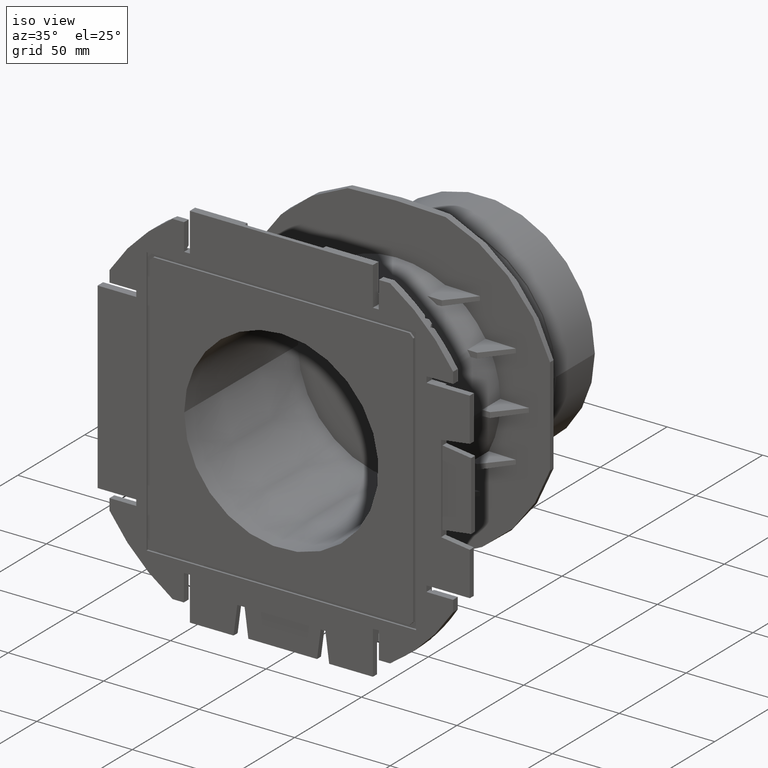
[diagram: clean part render]
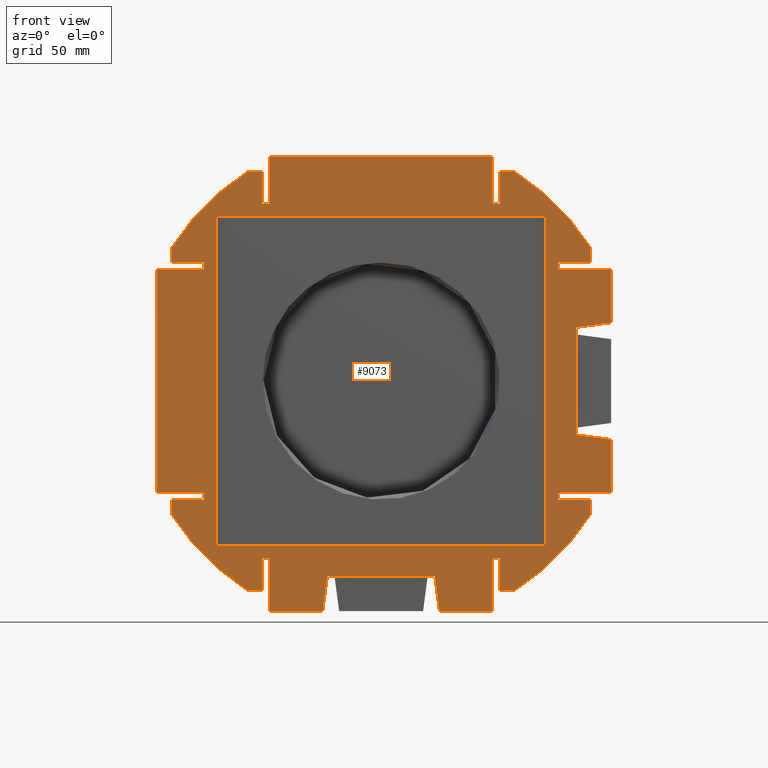
[diagram: tour spotlight — one face highlighted and labeled with its STEP entity id]
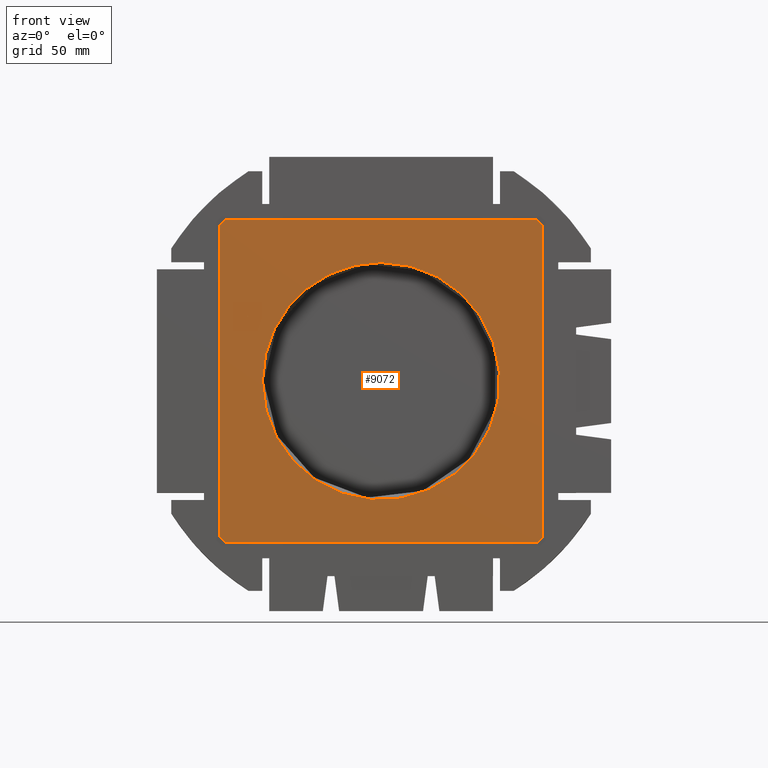
[diagram: tour spotlight — one face highlighted and labeled with its STEP entity id]
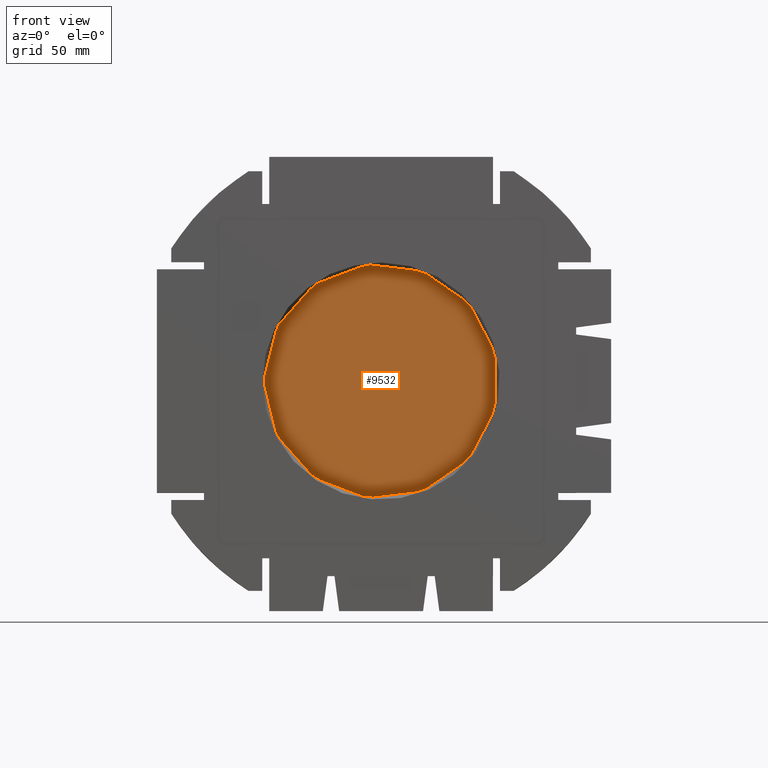
[diagram: tour spotlight — one face highlighted and labeled with its STEP entity id]
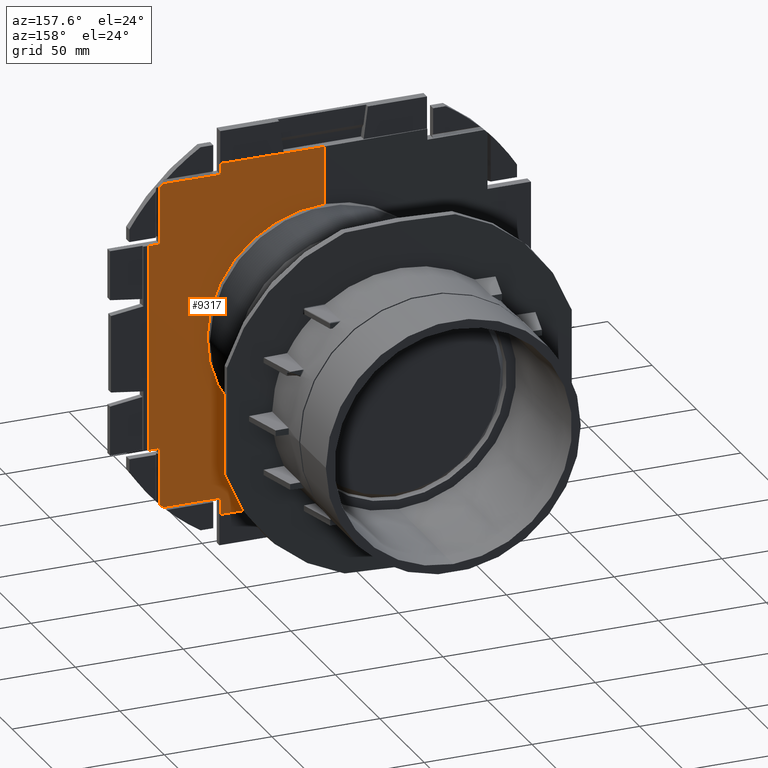
[diagram: tour spotlight — one face highlighted and labeled with its STEP entity id]
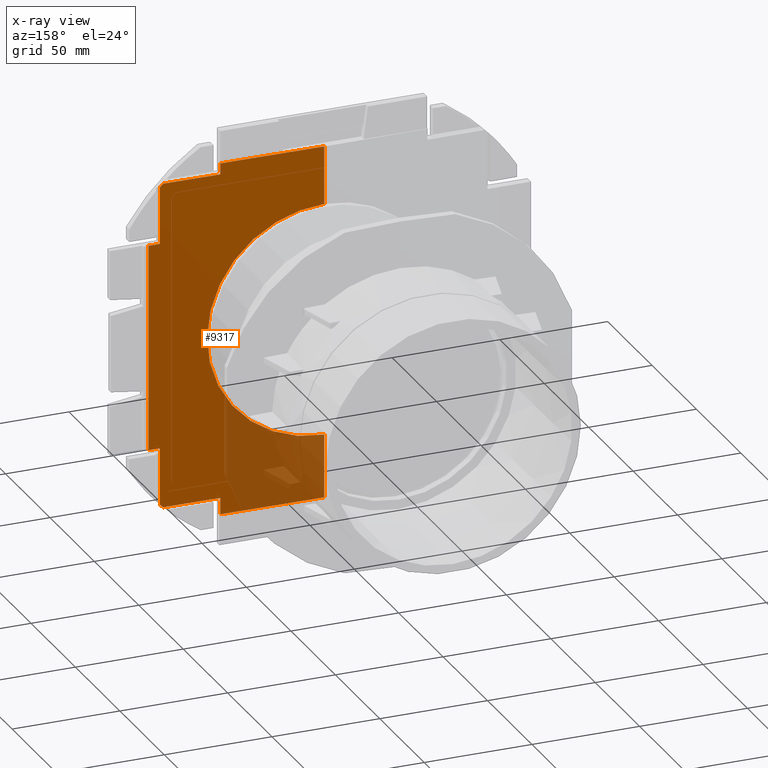
[diagram: x-ray of the same camera — body ghosted, this tour face saturated]
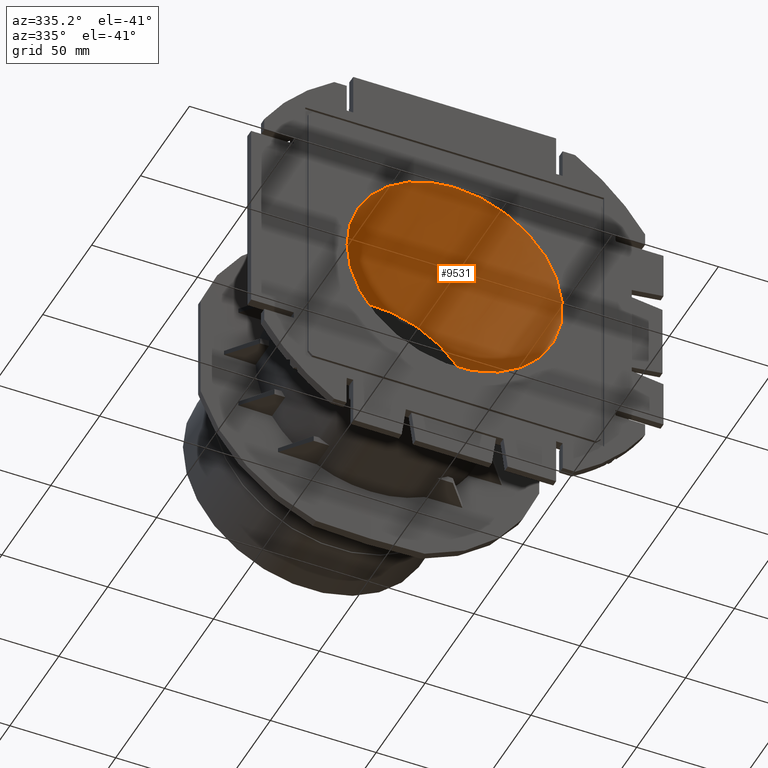
[diagram: tour spotlight — one face highlighted and labeled with its STEP entity id]
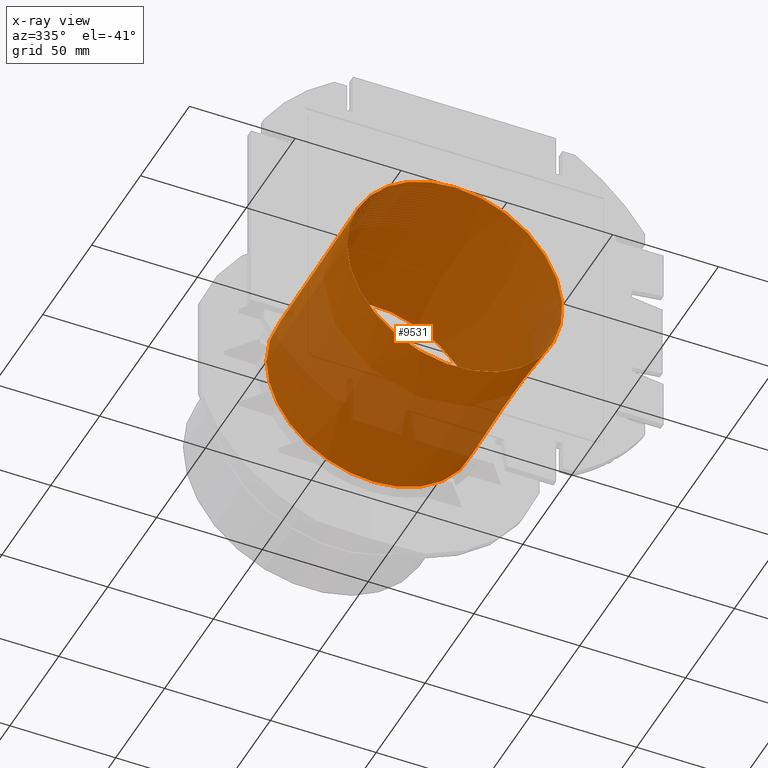
[diagram: x-ray of the same camera — body ghosted, this tour face saturated]
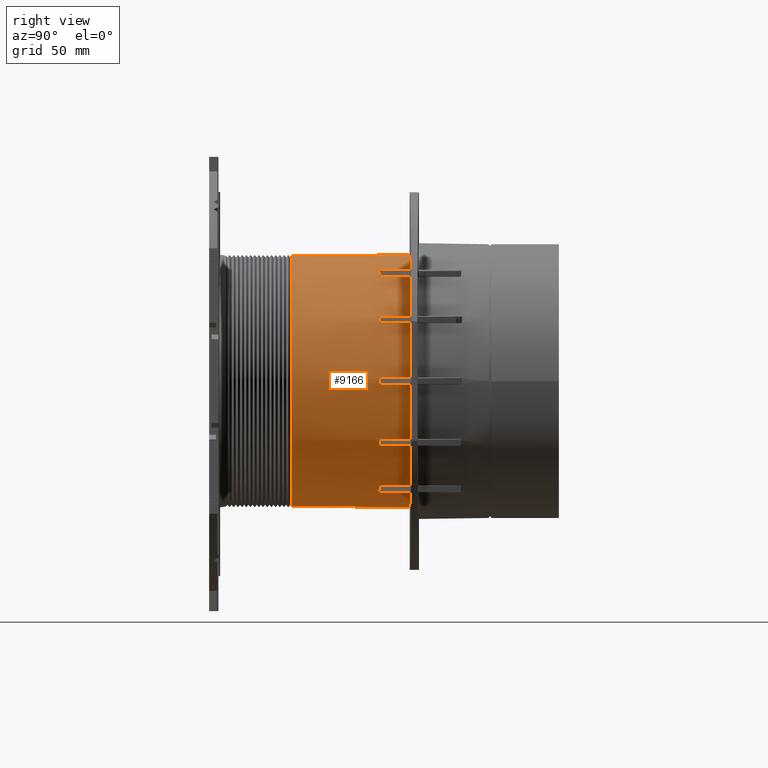
[diagram: tour spotlight — one face highlighted and labeled with its STEP entity id]
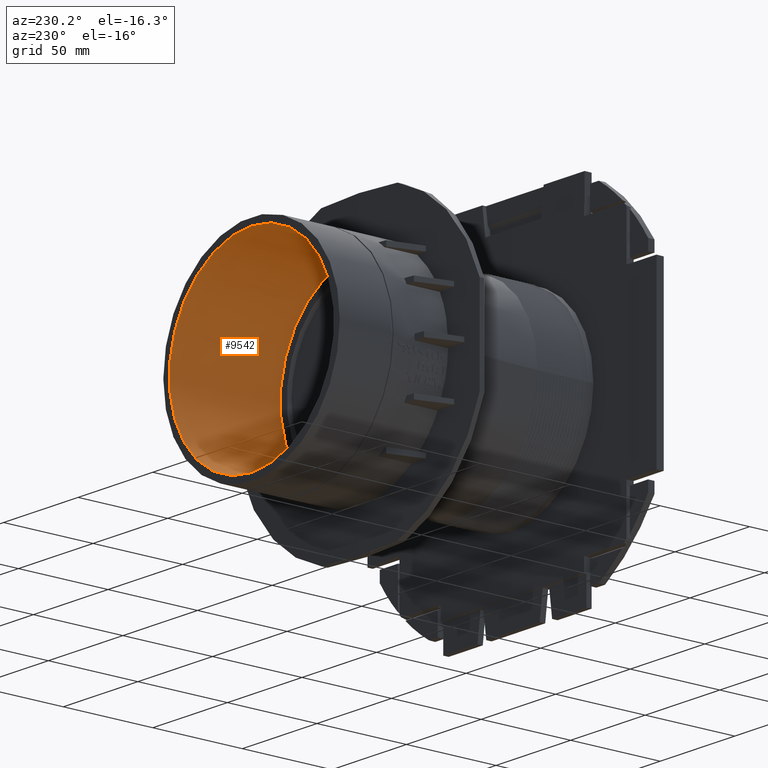
[diagram: tour spotlight — one face highlighted and labeled with its STEP entity id]
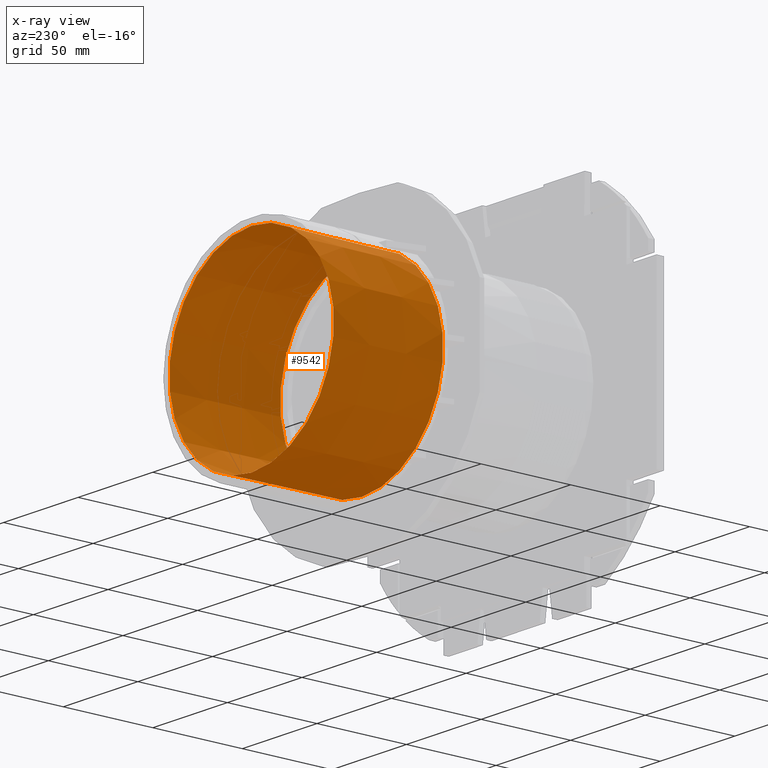
[diagram: x-ray of the same camera — body ghosted, this tour face saturated]
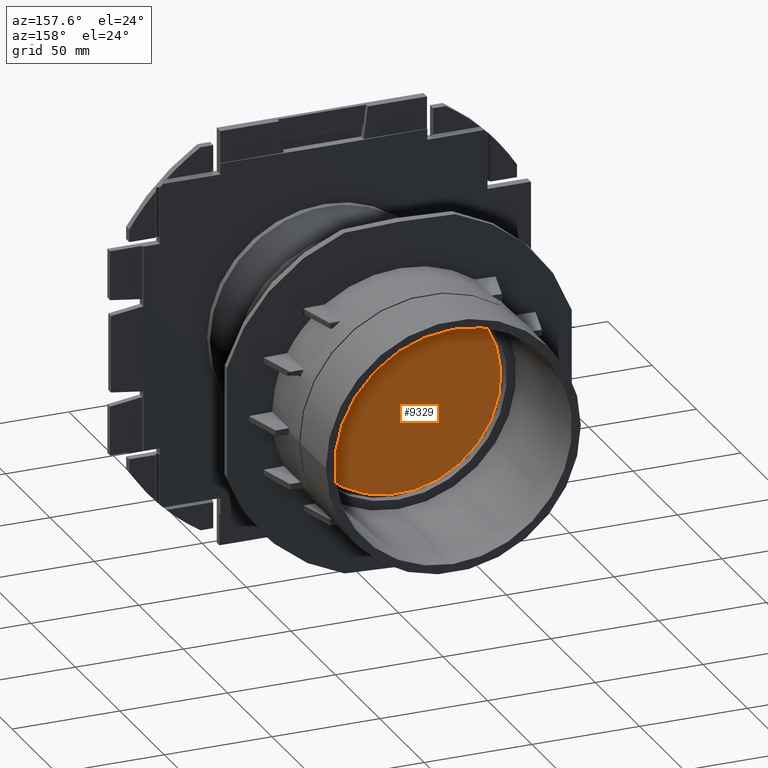
[diagram: tour spotlight — one face highlighted and labeled with its STEP entity id]
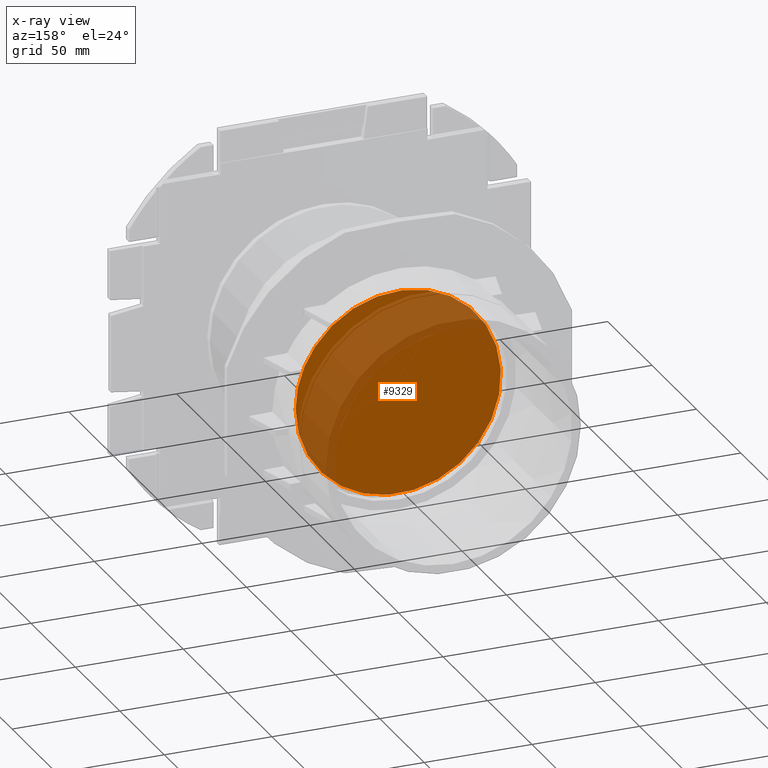
[diagram: x-ray of the same camera — body ghosted, this tour face saturated]
A machine part: a face-by-face anatomy tour. The part has 484 B-rep faces; the first image is the clean iso view, then the 8 largest visible faces are spotlighted one at a time (largest first), each with its STEP entity span.

Face 1 — front view, entity #9073. In plain terms, the highlighted planar face has unit normal (0, 1, 0).
Definition (entity closure, byte-faithful):
#462=FACE_BOUND('',#1142,.T.);
#490=CIRCLE('',#9580,106.5);
#491=CIRCLE('',#9581,106.5);
#492=CIRCLE('',#9582,106.5);
#493=CIRCLE('',#9583,106.5);
#656=FACE_OUTER_BOUND('',#1141,.T.);
#1141=EDGE_LOOP('',(#5601,#5602,#5603,#5604,#5605,#5606,#5607,#5608,#5609,
#5610,#5611,#5612,#5613,#5614,#5615,#5616,#5617,#5618,#5619,#5620,#5621,
#5622,#5623,#5624,#5625,#5626,#5627,#5628,#5629,#5630,#5631,#5632,#5633,
#5634,#5635,#5636,#5637,#5638,#5639,#5640,#5641,#5642,#5643,#5644,#5645,
#5646,#5647,#5648,#5649,#5650,#5651,#5652));
#1142=EDGE_LOOP('',(#5653,#5654,#5655,#5656));
#1658=LINE('',#12600,#2525);
#1659=LINE('',#12602,#2526);
#1660=LINE('',#12604,#2527);
#1661=LINE('',#12606,#2528);
#1662=LINE('',#12608,#2529);
#1663=LINE('',#12612,#2530);
#1664=LINE('',#12614,#2531);
#1665=LINE('',#12616,#2532);
#1666=LINE('',#12618,#2533);
#1667=LINE('',#12620,#2534);
#1668=LINE('',#12622,#2535);
#1669=LINE('',#12624,#2536);
#1670=LINE('',#12626,#2537);
#1671=LINE('',#12628,#2538);
#1672=LINE('',#12630,#2539);
#1673=LINE('',#12632,#2540);
#1674=LINE('',#12634,#2541);
#1675=LINE('',#12636,#2542);
#1676=LINE('',#12638,#2543);
#1677=LINE('',#12640,#2544);
#1678=LINE('',#12644,#2545);
#1679=LINE('',#12646,#2546);
#1680=LINE('',#12648,#2547);
#1681=LINE('',#12650,#2548);
#1682=LINE('',#12652,#2549);
#1683=LINE('',#12654,#2550);
#1684=LINE('',#12656,#2551);
#1685=LINE('',#12658,#2552);
#1686=LINE('',#12660,#2553);
#1687=LINE('',#12662,#2554);
#1688=LINE('',#12664,#2555);
#1689=LINE('',#12666,#2556);
#1690=LINE('',#12668,#2557);
#1691=LINE('',#12670,#2558);
#1692=LINE('',#12672,#2559);
#1693=LINE('',#12676,#2560);
#1694=LINE('',#12678,#2561);
#1695=LINE('',#12680,#2562);
#1696=LINE('',#12682,#2563);
#1697=LINE('',#12684,#2564);
#1698=LINE('',#12686,#2565);
#1699=LINE('',#12688,#2566);
#1700=LINE('',#12690,#2567);
#1701=LINE('',#12692,#2568);
#1702=LINE('',#12696,#2569);
#1703=LINE('',#12698,#2570);
#1704=LINE('',#12700,#2571);
#1705=LINE('',#12701,#2572);
#1706=LINE('',#12704,#2573);
#1707=LINE('',#12706,#2574);
#1708=LINE('',#12708,#2575);
#1709=LINE('',#12709,#2576);
#2525=VECTOR('',#10304,10.);
#2526=VECTOR('',#10305,10.);
#2527=VECTOR('',#10306,10.);
#2528=VECTOR('',#10307,10.);
#2529=VECTOR('',#10308,10.);
#2530=VECTOR('',#10311,10.);
#2531=VECTOR('',#10312,10.);
#2532=VECTOR('',#10313,10.);
#2533=VECTOR('',#10314,10.);
#2534=VECTOR('',#10315,10.);
#2535=VECTOR('',#10316,10.);
#2536=VECTOR('',#10317,10.);
#2537=VECTOR('',#10318,10.);
#2538=VECTOR('',#10319,10.);
#2539=VECTOR('',#10320,10.);
#2540=VECTOR('',#10321,10.);
#2541=VECTOR('',#10322,10.);
#2542=VECTOR('',#10323,10.);
#2543=VECTOR('',#10324,10.);
#2544=VECTOR('',#10325,10.);
#2545=VECTOR('',#10328,10.);
#2546=VECTOR('',#10329,10.);
#2547=VECTOR('',#10330,10.);
#2548=VECTOR('',#10331,10.);
#2549=VECTOR('',#10332,10.);
#2550=VECTOR('',#10333,10.);
#2551=VECTOR('',#10334,10.);
#2552=VECTOR('',#10335,10.);
#2553=VECTOR('',#10336,10.);
#2554=VECTOR('',#10337,10.);
#2555=VECTOR('',#10338,10.);
#2556=VECTOR('',#10339,10.);
#2557=VECTOR('',#10340,10.);
#2558=VECTOR('',#10341,10.);
#2559=VECTOR('',#10342,10.);
#2560=VECTOR('',#10345,10.);
#2561=VECTOR('',#10346,10.);
#2562=VECTOR('',#10347,10.);
#2563=VECTOR('',#10348,10.);
#2564=VECTOR('',#10349,10.);
#2565=VECTOR('',#10350,10.);
#2566=VECTOR('',#10351,10.);
#2567=VECTOR('',#10352,10.);
#2568=VECTOR('',#10353,10.);
#2569=VECTOR('',#10356,10.);
#2570=VECTOR('',#10357,10.);
#2571=VECTOR('',#10358,10.);
#2572=VECTOR('',#10359,10.);
#2573=VECTOR('',#10360,10.);
#2574=VECTOR('',#10361,10.);
#2575=VECTOR('',#10362,10.);
#2576=VECTOR('',#10363,10.);
#3394=VERTEX_POINT('',#12598);
#3395=VERTEX_POINT('',#12599);
#3396=VERTEX_POINT('',#12601);
#3397=VERTEX_POINT('',#12603);
#3398=VERTEX_POINT('',#12605);
#3399=VERTEX_POINT('',#12607);
#3400=VERTEX_POINT('',#12609);
#3401=VERTEX_POINT('',#12611);
#3402=VERTEX_POINT('',#12613);
#3403=VERTEX_POINT('',#12615);
#3404=VERTEX_POINT('',#12617);
#3405=VERTEX_POINT('',#12619);
#3406=VERTEX_POINT('',#12621);
#3407=VERTEX_POINT('',#12623);
#3408=VERTEX_POINT('',#12625);
#3409=VERTEX_POINT('',#12627);
#3410=VERTEX_POINT('',#12629);
#3411=VERTEX_POINT('',#12631);
#3412=VERTEX_POINT('',#12633);
#3413=VERTEX_POINT('',#12635);
#3414=VERTEX_POINT('',#12637);
#3415=VERTEX_POINT('',#12639);
#3416=VERTEX_POINT('',#12641);
#3417=VERTEX_POINT('',#12643);
#3418=VERTEX_POINT('',#12645);
#3419=VERTEX_POINT('',#12647);
#3420=VERTEX_POINT('',#12649);
#3421=VERTEX_POINT('',#12651);
#3422=VERTEX_POINT('',#12653);
#3423=VERTEX_POINT('',#12655);
#3424=VERTEX_POINT('',#12657);
#3425=VERTEX_POINT('',#12659);
#3426=VERTEX_POINT('',#12661);
#3427=VERTEX_POINT('',#12663);
#3428=VERTEX_POINT('',#12665);
#3429=VERTEX_POINT('',#12667);
#3430=VERTEX_POINT('',#12669);
#3431=VERTEX_POINT('',#12671);
#3432=VERTEX_POINT('',#12673);
#3433=VERTEX_POINT('',#12675);
#3434=VERTEX_POINT('',#12677);
#3435=VERTEX_POINT('',#12679);
#3436=VERTEX_POINT('',#12681);
#3437=VERTEX_POINT('',#12683);
#3438=VERTEX_POINT('',#12685);
#3439=VERTEX_POINT('',#12687);
#3440=VERTEX_POINT('',#12689);
#3441=VERTEX_POINT('',#12691);
#3442=VERTEX_POINT('',#12693);
#3443=VERTEX_POINT('',#12695);
#3444=VERTEX_POINT('',#12697);
#3445=VERTEX_POINT('',#12699);
#3446=VERTEX_POINT('',#12702);
#3447=VERTEX_POINT('',#12703);
#3448=VERTEX_POINT('',#12705);
#3449=VERTEX_POINT('',#12707);
#4270=EDGE_CURVE('',#3394,#3395,#1658,.T.);
#4271=EDGE_CURVE('',#3396,#3394,#1659,.T.);
#4272=EDGE_CURVE('',#3396,#3397,#1660,.T.);
#4273=EDGE_CURVE('',#3397,#3398,#1661,.T.);
#4274=EDGE_CURVE('',#3398,#3399,#1662,.T.);
#4275=EDGE_CURVE('',#3400,#3399,#490,.T.);
#4276=EDGE_CURVE('',#3400,#3401,#1663,.T.);
#4277=EDGE_CURVE('',#3401,#3402,#1664,.F.);
#4278=EDGE_CURVE('',#3402,#3403,#1665,.F.);
#4279=EDGE_CURVE('',#3403,#3404,#1666,.T.);
#4280=EDGE_CURVE('',#3404,#3405,#1667,.F.);
#4281=EDGE_CURVE('',#3406,#3405,#1668,.T.);
#4282=EDGE_CURVE('',#3407,#3406,#1669,.F.);
#4283=EDGE_CURVE('',#3407,#3408,#1670,.T.);
#4284=EDGE_CURVE('',#3409,#3408,#1671,.F.);
#4285=EDGE_CURVE('',#3410,#3409,#1672,.T.);
#4286=EDGE_CURVE('',#3410,#3411,#1673,.F.);
#4287=EDGE_CURVE('',#3411,#3412,#1674,.T.);
#4288=EDGE_CURVE('',#3412,#3413,#1675,.F.);
#4289=EDGE_CURVE('',#3413,#3414,#1676,.F.);
#4290=EDGE_CURVE('',#3414,#3415,#1677,.T.);
#4291=EDGE_CURVE('',#3416,#3415,#491,.T.);
#4292=EDGE_CURVE('',#3416,#3417,#1678,.T.);
#4293=EDGE_CURVE('',#3417,#3418,#1679,.F.);
#4294=EDGE_CURVE('',#3418,#3419,#1680,.F.);
#4295=EDGE_CURVE('',#3419,#3420,#1681,.T.);
#4296=EDGE_CURVE('',#3420,#3421,#1682,.F.);
#4297=EDGE_CURVE('',#3422,#3421,#1683,.T.);
#4298=EDGE_CURVE('',#3423,#3422,#1684,.F.);
#4299=EDGE_CURVE('',#3423,#3424,#1685,.F.);
#4300=EDGE_CURVE('',#3425,#3424,#1686,.F.);
#4301=EDGE_CURVE('',#3426,#3425,#1687,.T.);
#4302=EDGE_CURVE('',#3426,#3427,#1688,.F.);
#4303=EDGE_CURVE('',#3427,#3428,#1689,.T.);
#4304=EDGE_CURVE('',#3428,#3429,#1690,.F.);
#4305=EDGE_CURVE('',#3429,#3430,#1691,.F.);
#4306=EDGE_CURVE('',#3430,#3431,#1692,.T.);
#4307=EDGE_CURVE('',#3432,#3431,#492,.T.);
#4308=EDGE_CURVE('',#3432,#3433,#1693,.T.);
#4309=EDGE_CURVE('',#3433,#3434,#1694,.T.);
#4310=EDGE_CURVE('',#3434,#3435,#1695,.T.);
#4311=EDGE_CURVE('',#3435,#3436,#1696,.F.);
#4312=EDGE_CURVE('',#3437,#3436,#1697,.T.);
#4313=EDGE_CURVE('',#3437,#3438,#1698,.F.);
#4314=EDGE_CURVE('',#3438,#3439,#1699,.T.);
#4315=EDGE_CURVE('',#3439,#3440,#1700,.T.);
#4316=EDGE_CURVE('',#3440,#3441,#1701,.T.);
#4317=EDGE_CURVE('',#3442,#3441,#493,.T.);
#4318=EDGE_CURVE('',#3442,#3443,#1702,.T.);
#4319=EDGE_CURVE('',#3443,#3444,#1703,.T.);
#4320=EDGE_CURVE('',#3444,#3445,#1704,.T.);
#4321=EDGE_CURVE('',#3445,#3395,#1705,.F.);
#4322=EDGE_CURVE('',#3446,#3447,#1706,.T.);
#4323=EDGE_CURVE('',#3447,#3448,#1707,.T.);
#4324=EDGE_CURVE('',#3448,#3449,#1708,.T.);
#4325=EDGE_CURVE('',#3449,#3446,#1709,.T.);
#5601=ORIENTED_EDGE('',*,*,#4270,.F.);
#5602=ORIENTED_EDGE('',*,*,#4271,.F.);
#5603=ORIENTED_EDGE('',*,*,#4272,.T.);
#5604=ORIENTED_EDGE('',*,*,#4273,.T.);
#5605=ORIENTED_EDGE('',*,*,#4274,.T.);
#5606=ORIENTED_EDGE('',*,*,#4275,.F.);
#5607=ORIENTED_EDGE('',*,*,#4276,.T.);
#5608=ORIENTED_EDGE('',*,*,#4277,.T.);
#5609=ORIENTED_EDGE('',*,*,#4278,.T.);
#5610=ORIENTED_EDGE('',*,*,#4279,.T.);
#5611=ORIENTED_EDGE('',*,*,#4280,.T.);
#5612=ORIENTED_EDGE('',*,*,#4281,.F.);
#5613=ORIENTED_EDGE('',*,*,#4282,.F.);
#5614=ORIENTED_EDGE('',*,*,#4283,.T.);
#5615=ORIENTED_EDGE('',*,*,#4284,.F.);
#5616=ORIENTED_EDGE('',*,*,#4285,.F.);
#5617=ORIENTED_EDGE('',*,*,#4286,.T.);
#5618=ORIENTED_EDGE('',*,*,#4287,.T.);
#5619=ORIENTED_EDGE('',*,*,#4288,.T.);
#5620=ORIENTED_EDGE('',*,*,#4289,.T.);
#5621=ORIENTED_EDGE('',*,*,#4290,.T.);
#5622=ORIENTED_EDGE('',*,*,#4291,.F.);
#5623=ORIENTED_EDGE('',*,*,#4292,.T.);
#5624=ORIENTED_EDGE('',*,*,#4293,.T.);
#5625=ORIENTED_EDGE('',*,*,#4294,.T.);
#5626=ORIENTED_EDGE('',*,*,#4295,.T.);
#5627=ORIENTED_EDGE('',*,*,#4296,.T.);
#5628=ORIENTED_EDGE('',*,*,#4297,.F.);
#5629=ORIENTED_EDGE('',*,*,#4298,.F.);
#5630=ORIENTED_EDGE('',*,*,#4299,.T.);
#5631=ORIENTED_EDGE('',*,*,#4300,.F.);
#5632=ORIENTED_EDGE('',*,*,#4301,.F.);
#5633=ORIENTED_EDGE('',*,*,#4302,.T.);
#5634=ORIENTED_EDGE('',*,*,#4303,.T.);
#5635=ORIENTED_EDGE('',*,*,#4304,.T.);
#5636=ORIENTED_EDGE('',*,*,#4305,.T.);
#5637=ORIENTED_EDGE('',*,*,#4306,.T.);
#5638=ORIENTED_EDGE('',*,*,#4307,.F.);
#5639=ORIENTED_EDGE('',*,*,#4308,.T.);
#5640=ORIENTED_EDGE('',*,*,#4309,.T.);
#5641=ORIENTED_EDGE('',*,*,#4310,.T.);
#5642=ORIENTED_EDGE('',*,*,#4311,.T.);
#5643=ORIENTED_EDGE('',*,*,#4312,.F.);
#5644=ORIENTED_EDGE('',*,*,#4313,.T.);
#5645=ORIENTED_EDGE('',*,*,#4314,.T.);
#5646=ORIENTED_EDGE('',*,*,#4315,.T.);
#5647=ORIENTED_EDGE('',*,*,#4316,.T.);
#5648=ORIENTED_EDGE('',*,*,#4317,.F.);
#5649=ORIENTED_EDGE('',*,*,#4318,.T.);
#5650=ORIENTED_EDGE('',*,*,#4319,.T.);
#5651=ORIENTED_EDGE('',*,*,#4320,.T.);
#5652=ORIENTED_EDGE('',*,*,#4321,.T.);
#5653=ORIENTED_EDGE('',*,*,#4322,.T.);
#5654=ORIENTED_EDGE('',*,*,#4323,.T.);
#5655=ORIENTED_EDGE('',*,*,#4324,.T.);
#5656=ORIENTED_EDGE('',*,*,#4325,.T.);
#8254=PLANE('',#9579);
#9073=ADVANCED_FACE('',(#656,#462),#8254,.F.);
#9579=AXIS2_PLACEMENT_3D('',#12597,#10302,#10303);
#9580=AXIS2_PLACEMENT_3D('',#12610,#10309,#10310);
#9581=AXIS2_PLACEMENT_3D('',#12642,#10326,#10327);
#9582=AXIS2_PLACEMENT_3D('',#12674,#10343,#10344);
#9583=AXIS2_PLACEMENT_3D('',#12694,#10354,#10355);
#10302=DIRECTION('center_axis',(0.,1.,0.));
#10303=DIRECTION('ref_axis',(0.,0.,1.));
#10304=DIRECTION('',(0.,0.,1.));
#10305=DIRECTION('',(-1.,0.,0.));
#10306=DIRECTION('',(0.,0.,-1.));
#10307=DIRECTION('',(-1.,0.,6.34413156928661E-16));
#10308=DIRECTION('',(6.12323399573677E-17,0.,-1.));
#10309=DIRECTION('center_axis',(0.,1.,0.));
#10310=DIRECTION('ref_axis',(-1.,0.,0.));
#10311=DIRECTION('',(1.,0.,0.));
#10312=DIRECTION('',(6.3688593072386E-16,0.,-1.));
#10313=DIRECTION('',(-0.0302192516892379,0.,-0.999543294123542));
#10314=DIRECTION('',(1.,0.,2.96059473233375E-15));
#10315=DIRECTION('',(6.3907461451902E-16,0.,1.));
#10316=DIRECTION('',(-1.,0.,0.));
#10317=DIRECTION('',(0.132163720091018,0.,0.991227900682635));
#10318=DIRECTION('',(1.,0.,-8.47862555180114E-16));
#10319=DIRECTION('',(0.132163720091018,0.,-0.991227900682635));
#10320=DIRECTION('',(-1.,0.,0.));
#10321=DIRECTION('',(6.3907461451902E-16,0.,-1.));
#10322=DIRECTION('',(1.,0.,-2.96059473233375E-15));
#10323=DIRECTION('',(-0.0302192516892379,0.,0.999543294123542));
#10324=DIRECTION('',(6.3688593072386E-16,0.,1.));
#10325=DIRECTION('',(1.,0.,0.));
#10326=DIRECTION('center_axis',(0.,1.,0.));
#10327=DIRECTION('ref_axis',(-1.,0.,0.));
#10328=DIRECTION('',(-1.83697019872103E-16,0.,1.));
#10329=DIRECTION('',(1.,0.,5.75653590766492E-16));
#10330=DIRECTION('',(0.999543294123542,0.,-0.030219251689238));
#10331=DIRECTION('',(-2.89936239237638E-15,0.,1.));
#10332=DIRECTION('',(-1.,0.,7.00209620317169E-16));
#10333=DIRECTION('',(-6.12323399573677E-17,0.,-1.));
#10334=DIRECTION('',(-0.991227900682635,0.,0.132163720091018));
#10335=DIRECTION('',(-6.12323399573677E-17,0.,-1.));
#10336=DIRECTION('',(0.991227900682635,0.,0.132163720091018));
#10337=DIRECTION('',(-6.12323399573677E-17,0.,-1.));
#10338=DIRECTION('',(1.,0.,5.77744940402434E-16));
#10339=DIRECTION('',(3.02182707229112E-15,0.,1.));
#10340=DIRECTION('',(-0.999543294123542,0.,-0.0302192516892378));
#10341=DIRECTION('',(-1.,0.,6.98118270681227E-16));
#10342=DIRECTION('',(-1.83697019872103E-16,0.,1.));
#10343=DIRECTION('center_axis',(0.,1.,0.));
#10344=DIRECTION('ref_axis',(-1.,0.,0.));
#10345=DIRECTION('',(-1.,0.,-1.22464679914735E-16));
#10346=DIRECTION('',(6.95645496886028E-16,0.,-1.));
#10347=DIRECTION('',(-1.,0.,-6.12323399573677E-17));
#10348=DIRECTION('',(6.12416673599373E-17,0.,-1.));
#10349=DIRECTION('',(1.,0.,6.12323399573677E-17));
#10350=DIRECTION('',(-6.12416673599373E-17,0.,1.));
#10351=DIRECTION('',(-1.,0.,-6.12323399573677E-17));
#10352=DIRECTION('',(5.73180816971293E-16,0.,1.));
#10353=DIRECTION('',(-1.,0.,-1.22464679914735E-16));
#10354=DIRECTION('center_axis',(0.,1.,0.));
#10355=DIRECTION('ref_axis',(-1.,0.,0.));
#10356=DIRECTION('',(6.12323399573677E-17,0.,-1.));
#10357=DIRECTION('',(1.,0.,6.34413156928661E-16));
#10358=DIRECTION('',(0.,0.,-1.));
#10359=DIRECTION('',(1.,0.,0.));
#10360=DIRECTION('',(0.,0.,1.));
#10361=DIRECTION('',(1.,0.,6.54998834587113E-17));
#10362=DIRECTION('',(-1.30999766917423E-16,0.,-1.));
#10363=DIRECTION('',(-1.,0.,6.54998834587113E-17));
#12597=CARTESIAN_POINT('Origin',(2.73958011914664E-15,-88.5,1.0934791255157E-15));
#12598=CARTESIAN_POINT('',(-96.2,-88.5,-47.9301797402872));
#12599=CARTESIAN_POINT('',(-96.2,-88.5,47.9301797402872));
#12600=CARTESIAN_POINT('',(-96.2,-88.5,-48.));
#12601=CARTESIAN_POINT('',(-76.,-88.5,-47.9301797402872));
#12602=CARTESIAN_POINT('',(-44.95,-88.5,-47.9301797402872));
#12603=CARTESIAN_POINT('',(-76.,-88.5,-51.));
#12604=CARTESIAN_POINT('',(-76.,-88.5,-24.));
#12605=CARTESIAN_POINT('',(-90.,-88.5,-51.));
#12606=CARTESIAN_POINT('',(-38.,-88.5,-51.));
#12607=CARTESIAN_POINT('',(-90.,-88.5,-56.9407586883069));
#12608=CARTESIAN_POINT('',(-90.,-88.5,28.4703793441534));
#12609=CARTESIAN_POINT('',(-56.9407586883069,-88.5,-90.));
#12610=CARTESIAN_POINT('Origin',(0.,-88.5,0.));
#12611=CARTESIAN_POINT('',(-51.0610927272488,-88.5,-90.));
#12612=CARTESIAN_POINT('',(-28.4703793441534,-88.5,-90.));
#12613=CARTESIAN_POINT('',(-51.0610927272488,-88.5,-77.7320508075695));
#12614=CARTESIAN_POINT('',(-51.0610927272488,-88.5,-45.));
#12615=CARTESIAN_POINT('',(-51.0087275324641,-88.5,-76.));
#12616=CARTESIAN_POINT('',(-50.0491625135015,-88.5,-44.2610678172012));
#12617=CARTESIAN_POINT('',(-47.9251224492294,-88.5,-76.));
#12618=CARTESIAN_POINT('',(-25.4999999999999,-88.5,-75.9999999999999));
#12619=CARTESIAN_POINT('',(-47.9251224492294,-88.5,-98.7));
#12620=CARTESIAN_POINT('',(-47.9251224492294,-88.5,-38.));
#12621=CARTESIAN_POINT('',(-25.0528286126213,-88.5,-98.7));
#12622=CARTESIAN_POINT('',(48.,-88.5,-98.7));
#12623=CARTESIAN_POINT('',(-23.0481739286405,-88.5,-83.6650898701436));
#12624=CARTESIAN_POINT('',(-17.8684997285581,-88.5,-44.8175333695256));
#12625=CARTESIAN_POINT('',(23.0481739286405,-88.5,-83.6650898701436));
#12626=CARTESIAN_POINT('',(-12.,-88.5,-83.6650898701436));
#12627=CARTESIAN_POINT('',(25.0528286126214,-88.5,-98.7));
#12628=CARTESIAN_POINT('',(17.8684997285581,-88.5,-44.8175333695256));
#12629=CARTESIAN_POINT('',(47.9251224492294,-88.5,-98.7));
#12630=CARTESIAN_POINT('',(48.,-88.5,-98.7));
#12631=CARTESIAN_POINT('',(47.9251224492294,-88.5,-76.));
#12632=CARTESIAN_POINT('',(47.9251224492294,-88.5,-44.95));
#12633=CARTESIAN_POINT('',(51.0087275324641,-88.5,-76.));
#12634=CARTESIAN_POINT('',(23.9999999999999,-88.5,-75.9999999999999));
#12635=CARTESIAN_POINT('',(51.0610927272488,-88.5,-77.7320508075692));
#12636=CARTESIAN_POINT('',(49.8376277590294,-88.5,-37.2642650015319));
#12637=CARTESIAN_POINT('',(51.0610927272488,-88.5,-90.));
#12638=CARTESIAN_POINT('',(51.0610927272488,-88.5,-38.));
#12639=CARTESIAN_POINT('',(56.9407586883069,-88.5,-90.));
#12640=CARTESIAN_POINT('',(-28.4703793441534,-88.5,-90.));
#12641=CARTESIAN_POINT('',(90.,-88.5,-56.9407586883069));
#12642=CARTESIAN_POINT('Origin',(0.,-88.5,0.));
#12643=CARTESIAN_POINT('',(90.,-88.5,-51.0610927272488));
#12644=CARTESIAN_POINT('',(90.,-88.5,-28.4703793441534));
#12645=CARTESIAN_POINT('',(77.7320508075695,-88.5,-51.0610927272488));
#12646=CARTESIAN_POINT('',(45.,-88.5,-51.0610927272488));
#12647=CARTESIAN_POINT('',(76.,-88.5,-51.0087275324641));
#12648=CARTESIAN_POINT('',(44.2610678172012,-88.5,-50.0491625135015));
#12649=CARTESIAN_POINT('',(76.,-88.5,-47.9301797402872));
#12650=CARTESIAN_POINT('',(75.9999999999999,-88.5,-25.4999999999999));
#12651=CARTESIAN_POINT('',(98.7,-88.5,-47.9301797402872));
#12652=CARTESIAN_POINT('',(38.,-88.5,-47.9301797402871));
#12653=CARTESIAN_POINT('',(98.7,-88.5,-25.0528286126214));
#12654=CARTESIAN_POINT('',(98.7,-88.5,48.));
#12655=CARTESIAN_POINT('',(83.6650898701436,-88.5,-23.0481739286405));
#12656=CARTESIAN_POINT('',(44.8175333695256,-88.5,-17.8684997285581));
#12657=CARTESIAN_POINT('',(83.6650898701436,-88.5,23.0481739286405));
#12658=CARTESIAN_POINT('',(83.6650898701436,-88.5,4.51758994350134E-15));
#12659=CARTESIAN_POINT('',(98.7,-88.5,25.0528286126214));
#12660=CARTESIAN_POINT('',(44.8175333695256,-88.5,17.8684997285581));
#12661=CARTESIAN_POINT('',(98.7,-88.5,47.9301797402872));
#12662=CARTESIAN_POINT('',(98.7,-88.5,48.));
#12663=CARTESIAN_POINT('',(76.,-88.5,47.9301797402871));
#12664=CARTESIAN_POINT('',(44.95,-88.5,47.9301797402871));
#12665=CARTESIAN_POINT('',(76.,-88.5,51.0087275324641));
#12666=CARTESIAN_POINT('',(75.9999999999999,-88.5,23.9999999999999));
#12667=CARTESIAN_POINT('',(77.7320508075691,-88.5,51.0610927272488));
#12668=CARTESIAN_POINT('',(37.2642650015319,-88.5,49.8376277590293));
#12669=CARTESIAN_POINT('',(90.,-88.5,51.0610927272488));
#12670=CARTESIAN_POINT('',(38.,-88.5,51.0610927272488));
#12671=CARTESIAN_POINT('',(90.,-88.5,56.9407586883069));
#12672=CARTESIAN_POINT('',(90.,-88.5,-28.4703793441534));
#12673=CARTESIAN_POINT('',(56.9407586883069,-88.5,90.));
#12674=CARTESIAN_POINT('Origin',(0.,-88.5,0.));
#12675=CARTESIAN_POINT('',(51.,-88.5,90.));
#12676=CARTESIAN_POINT('',(28.4703793441534,-88.5,90.));
#12677=CARTESIAN_POINT('',(51.,-88.5,76.));
#12678=CARTESIAN_POINT('',(51.,-88.5,45.));
#12679=CARTESIAN_POINT('',(47.9251224492294,-88.5,76.));
#12680=CARTESIAN_POINT('',(25.5,-88.5,76.));
#12681=CARTESIAN_POINT('',(47.9251224492294,-88.5,96.2));
#12682=CARTESIAN_POINT('',(47.9251224492294,-88.5,38.));
#12683=CARTESIAN_POINT('',(-47.9251224492294,-88.5,96.2));
#12684=CARTESIAN_POINT('',(-48.,-88.5,96.2));
#12685=CARTESIAN_POINT('',(-47.9251224492294,-88.5,76.));
#12686=CARTESIAN_POINT('',(-47.9251224492294,-88.5,44.95));
#12687=CARTESIAN_POINT('',(-51.,-88.5,76.));
#12688=CARTESIAN_POINT('',(-24.,-88.5,76.));
#12689=CARTESIAN_POINT('',(-51.,-88.5,90.));
#12690=CARTESIAN_POINT('',(-51.,-88.5,38.));
#12691=CARTESIAN_POINT('',(-56.9407586883069,-88.5,90.));
#12692=CARTESIAN_POINT('',(28.4703793441534,-88.5,90.));
#12693=CARTESIAN_POINT('',(-90.,-88.5,56.9407586883069));
#12694=CARTESIAN_POINT('Origin',(0.,-88.5,0.));
#12695=CARTESIAN_POINT('',(-90.,-88.5,51.));
#12696=CARTESIAN_POINT('',(-90.,-88.5,28.4703793441534));
#12697=CARTESIAN_POINT('',(-76.,-88.5,51.));
#12698=CARTESIAN_POINT('',(-45.,-88.5,51.));
#12699=CARTESIAN_POINT('',(-76.,-88.5,47.9301797402871));
#12700=CARTESIAN_POINT('',(-76.,-88.5,25.5));
#12701=CARTESIAN_POINT('',(-38.,-88.5,47.9301797402872));
#12702=CARTESIAN_POINT('',(-70.6,-88.5,-70.6));
#12703=CARTESIAN_POINT('',(-70.6,-88.5,70.6));
#12704=CARTESIAN_POINT('',(-70.6,-88.5,-33.9));
#12705=CARTESIAN_POINT('',(70.6,-88.5,70.6));
#12706=CARTESIAN_POINT('',(-33.9,-88.5,70.6));
#12707=CARTESIAN_POINT('',(70.6,-88.5,-70.6));
#12708=CARTESIAN_POINT('',(70.6,-88.5,33.9));
#12709=CARTESIAN_POINT('',(33.9,-88.5,-70.6));

Face 2 — front view, entity #9072. In plain terms, the highlighted planar face has unit normal (0, 1, 0).
Definition (entity closure, byte-faithful):
#461=FACE_BOUND('',#1140,.T.);
#488=CIRCLE('',#9577,50.8830568944237);
#489=CIRCLE('',#9578,50.8830568944237);
#655=FACE_OUTER_BOUND('',#1139,.T.);
#1139=EDGE_LOOP('',(#5591,#5592,#5593,#5594,#5595,#5596,#5597,#5598));
#1140=EDGE_LOOP('',(#5599,#5600));
#1650=LINE('',#12579,#2517);
#1651=LINE('',#12581,#2518);
#1652=LINE('',#12583,#2519);
#1653=LINE('',#12585,#2520);
#1654=LINE('',#12587,#2521);
#1655=LINE('',#12589,#2522);
#1656=LINE('',#12591,#2523);
#1657=LINE('',#12592,#2524);
#2517=VECTOR('',#10290,10.);
#2518=VECTOR('',#10291,10.);
#2519=VECTOR('',#10292,10.);
#2520=VECTOR('',#10293,10.);
#2521=VECTOR('',#10294,10.);
#2522=VECTOR('',#10295,10.);
#2523=VECTOR('',#10296,10.);
#2524=VECTOR('',#10297,10.);
#3384=VERTEX_POINT('',#12577);
#3385=VERTEX_POINT('',#12578);
#3386=VERTEX_POINT('',#12580);
#3387=VERTEX_POINT('',#12582);
#3388=VERTEX_POINT('',#12584);
#3389=VERTEX_POINT('',#12586);
#3390=VERTEX_POINT('',#12588);
#3391=VERTEX_POINT('',#12590);
#3392=VERTEX_POINT('',#12593);
#3393=VERTEX_POINT('',#12594);
#4260=EDGE_CURVE('',#3384,#3385,#1650,.T.);
#4261=EDGE_CURVE('',#3385,#3386,#1651,.T.);
#4262=EDGE_CURVE('',#3386,#3387,#1652,.T.);
#4263=EDGE_CURVE('',#3387,#3388,#1653,.T.);
#4264=EDGE_CURVE('',#3388,#3389,#1654,.T.);
#4265=EDGE_CURVE('',#3389,#3390,#1655,.T.);
#4266=EDGE_CURVE('',#3390,#3391,#1656,.T.);
#4267=EDGE_CURVE('',#3391,#3384,#1657,.T.);
#4268=EDGE_CURVE('',#3392,#3393,#488,.F.);
#4269=EDGE_CURVE('',#3393,#3392,#489,.F.);
#5591=ORIENTED_EDGE('',*,*,#4260,.T.);
#5592=ORIENTED_EDGE('',*,*,#4261,.T.);
#5593=ORIENTED_EDGE('',*,*,#4262,.T.);
#5594=ORIENTED_EDGE('',*,*,#4263,.T.);
#5595=ORIENTED_EDGE('',*,*,#4264,.T.);
#5596=ORIENTED_EDGE('',*,*,#4265,.T.);
#5597=ORIENTED_EDGE('',*,*,#4266,.T.);
#5598=ORIENTED_EDGE('',*,*,#4267,.T.);
#5599=ORIENTED_EDGE('',*,*,#4268,.T.);
#5600=ORIENTED_EDGE('',*,*,#4269,.T.);
#8253=PLANE('',#9576);
#9072=ADVANCED_FACE('',(#655,#461),#8253,.F.);
#9576=AXIS2_PLACEMENT_3D('',#12576,#10288,#10289);
#9577=AXIS2_PLACEMENT_3D('',#12595,#10298,#10299);
#9578=AXIS2_PLACEMENT_3D('',#12596,#10300,#10301);
#10288=DIRECTION('center_axis',(0.,1.,0.));
#10289=DIRECTION('ref_axis',(0.,0.,1.));
#10290=DIRECTION('',(1.98549572213143E-16,0.,-1.));
#10291=DIRECTION('',(0.707106781186544,0.,-0.707106781186551));
#10292=DIRECTION('',(1.,0.,6.61831907377142E-17));
#10293=DIRECTION('',(0.707106781186546,0.,0.707106781186549));
#10294=DIRECTION('',(1.98549572213143E-16,0.,1.));
#10295=DIRECTION('',(-0.707106781186549,0.,0.707106781186546));
#10296=DIRECTION('',(-1.,0.,-6.61831907377142E-17));
#10297=DIRECTION('',(-0.707106781186551,0.,-0.707106781186544));
#10298=DIRECTION('center_axis',(0.,-1.,0.));
#10299=DIRECTION('ref_axis',(1.,0.,0.));
#10300=DIRECTION('center_axis',(0.,-1.,0.));
#10301=DIRECTION('ref_axis',(1.,0.,0.));
#12576=CARTESIAN_POINT('Origin',(2.73958011914664E-15,-88.5,1.0934791255157E-15));
#12577=CARTESIAN_POINT('',(-69.1,-88.5,67.1));
#12578=CARTESIAN_POINT('',(-69.1,-88.5,-67.1));
#12579=CARTESIAN_POINT('',(-69.1,-88.5,-33.55));
#12580=CARTESIAN_POINT('',(-67.1,-88.5,-69.1));
#12581=CARTESIAN_POINT('',(-67.6000000000002,-88.5,-68.5999999999999));
#12582=CARTESIAN_POINT('',(67.1,-88.5,-69.1));
#12583=CARTESIAN_POINT('',(33.55,-88.5,-69.1));
#12584=CARTESIAN_POINT('',(69.1,-88.5,-67.1));
#12585=CARTESIAN_POINT('',(68.6000000000001,-88.5,-67.5999999999999));
#12586=CARTESIAN_POINT('',(69.1,-88.5,67.1));
#12587=CARTESIAN_POINT('',(69.1,-88.5,33.55));
#12588=CARTESIAN_POINT('',(67.1,-88.5,69.1));
#12589=CARTESIAN_POINT('',(67.5999999999999,-88.5,68.6000000000001));
#12590=CARTESIAN_POINT('',(-67.1,-88.5,69.1));
#12591=CARTESIAN_POINT('',(-33.55,-88.5,69.1));
#12592=CARTESIAN_POINT('',(-68.5999999999999,-88.5,67.6000000000002));
#12593=CARTESIAN_POINT('',(0.,-88.5,50.8830568944237));
#12594=CARTESIAN_POINT('',(-50.8830568944237,-88.5,-6.23137727565887E-15));
#12595=CARTESIAN_POINT('Origin',(0.,-88.5,0.));
#12596=CARTESIAN_POINT('Origin',(0.,-88.5,0.));

Face 3 — front view, entity #9532. In plain terms, the highlighted planar face has unit normal (0, -1, 0).
Definition (entity closure, byte-faithful):
#644=CIRCLE('',#10252,50.15);
#645=CIRCLE('',#10253,50.15);
#1115=FACE_OUTER_BOUND('',#1625,.T.);
#1625=EDGE_LOOP('',(#8145,#8146));
#4250=VERTEX_POINT('',#18560);
#4251=VERTEX_POINT('',#18561);
#5565=EDGE_CURVE('',#4250,#4251,#644,.T.);
#5567=EDGE_CURVE('',#4251,#4250,#645,.T.);
#8145=ORIENTED_EDGE('',*,*,#5565,.F.);
#8146=ORIENTED_EDGE('',*,*,#5567,.F.);
#8570=PLANE('',#10254);
#9532=ADVANCED_FACE('',(#1115),#8570,.T.);
#10252=AXIS2_PLACEMENT_3D('',#18562,#12493,#12494);
#10253=AXIS2_PLACEMENT_3D('',#18564,#12496,#12497);
#10254=AXIS2_PLACEMENT_3D('',#18565,#12498,#12499);
#12493=DIRECTION('center_axis',(0.,1.,0.));
#12494=DIRECTION('ref_axis',(1.,0.,0.));
#12496=DIRECTION('center_axis',(0.,1.,0.));
#12497=DIRECTION('ref_axis',(1.,0.,0.));
#12498=DIRECTION('center_axis',(0.,-1.,0.));
#12499=DIRECTION('ref_axis',(0.,0.,-1.));
#18560=CARTESIAN_POINT('',(22.5763841705387,-4.5,-44.7809041644343));
#18561=CARTESIAN_POINT('',(-50.15,-4.5,-6.14160369772398E-15));
#18562=CARTESIAN_POINT('Origin',(0.,-4.5,0.));
#18564=CARTESIAN_POINT('Origin',(0.,-4.5,0.));
#18565=CARTESIAN_POINT('Origin',(-25.075,-4.5,0.));

Face 4 — auxiliary view, entity #9317. An x-ray twin of the same camera follows (body ghosted, this face saturated) — the face is partly hidden behind the body. In plain terms, the highlighted planar face has unit normal (0.0087, 1, 0).
Definition (entity closure, byte-faithful):
#230=ELLIPSE('',#9905,54.1520619445877,54.15);
#247=ELLIPSE('',#9993,106.421865390962,106.417811937772);
#249=ELLIPSE('',#9998,106.421865390962,106.417811937772);
#900=FACE_OUTER_BOUND('',#1410,.T.);
#1410=EDGE_LOOP('',(#7189,#7190,#7191,#7192,#7193,#7194,#7195,#7196,#7197,
#7198,#7199,#7200,#7201,#7202,#7203,#7204));
#1849=LINE('',#15215,#2716);
#1856=LINE('',#15228,#2723);
#1875=LINE('',#15267,#2742);
#2135=LINE('',#16647,#3002);
#2143=LINE('',#16665,#3010);
#2148=LINE('',#16678,#3015);
#2170=LINE('',#16726,#3037);
#2183=LINE('',#16756,#3050);
#2260=LINE('',#17344,#3127);
#2284=LINE('',#17392,#3151);
#2285=LINE('',#17394,#3152);
#2286=LINE('',#17396,#3153);
#2287=LINE('',#17397,#3154);
#2716=VECTOR('',#10791,10.);
#2723=VECTOR('',#10800,10.);
#2742=VECTOR('',#10827,10.);
#3002=VECTOR('',#11443,10.);
#3010=VECTOR('',#11455,10.);
#3015=VECTOR('',#11466,10.);
#3037=VECTOR('',#11508,10.);
#3050=VECTOR('',#11539,10.);
#3127=VECTOR('',#11788,10.);
#3151=VECTOR('',#11850,10.);
#3152=VECTOR('',#11851,10.);
#3153=VECTOR('',#11852,10.);
#3154=VECTOR('',#11853,10.);
#3807=VERTEX_POINT('',#15212);
#3808=VERTEX_POINT('',#15214);
#3813=VERTEX_POINT('',#15227);
#3828=VERTEX_POINT('',#15264);
#3829=VERTEX_POINT('',#15266);
#4061=VERTEX_POINT('',#16635);
#4062=VERTEX_POINT('',#16636);
#4073=VERTEX_POINT('',#16663);
#4078=VERTEX_POINT('',#16677);
#4093=VERTEX_POINT('',#16723);
#4094=VERTEX_POINT('',#16725);
#4102=VERTEX_POINT('',#16755);
#4138=VERTEX_POINT('',#16883);
#4161=VERTEX_POINT('',#17343);
#4167=VERTEX_POINT('',#17393);
#4168=VERTEX_POINT('',#17395);
#4693=EDGE_CURVE('',#3807,#3808,#1849,.T.);
#4700=EDGE_CURVE('',#3808,#3813,#1856,.T.);
#4719=EDGE_CURVE('',#3828,#3829,#1875,.F.);
#5067=EDGE_CURVE('',#4061,#4062,#230,.T.);
#5073=EDGE_CURVE('',#4061,#3807,#2135,.F.);
#5083=EDGE_CURVE('',#4073,#4062,#2143,.F.);
#5089=EDGE_CURVE('',#3813,#4078,#2148,.T.);
#5114=EDGE_CURVE('',#4094,#4093,#2170,.T.);
#5130=EDGE_CURVE('',#3829,#4102,#2183,.T.);
#5193=EDGE_CURVE('',#4093,#4102,#247,.T.);
#5197=EDGE_CURVE('',#4138,#4078,#249,.T.);
#5264=EDGE_CURVE('',#4161,#4094,#2260,.F.);
#5288=EDGE_CURVE('',#4073,#4161,#2284,.F.);
#5289=EDGE_CURVE('',#3828,#4167,#2285,.T.);
#5290=EDGE_CURVE('',#4167,#4168,#2286,.T.);
#5291=EDGE_CURVE('',#4168,#4138,#2287,.T.);
#7189=ORIENTED_EDGE('',*,*,#5067,.T.);
#7190=ORIENTED_EDGE('',*,*,#5083,.F.);
#7191=ORIENTED_EDGE('',*,*,#5288,.T.);
#7192=ORIENTED_EDGE('',*,*,#5264,.T.);
#7193=ORIENTED_EDGE('',*,*,#5114,.T.);
#7194=ORIENTED_EDGE('',*,*,#5193,.T.);
#7195=ORIENTED_EDGE('',*,*,#5130,.F.);
#7196=ORIENTED_EDGE('',*,*,#4719,.F.);
#7197=ORIENTED_EDGE('',*,*,#5289,.T.);
#7198=ORIENTED_EDGE('',*,*,#5290,.T.);
#7199=ORIENTED_EDGE('',*,*,#5291,.T.);
#7200=ORIENTED_EDGE('',*,*,#5197,.T.);
#7201=ORIENTED_EDGE('',*,*,#5089,.F.);
#7202=ORIENTED_EDGE('',*,*,#4700,.F.);
#7203=ORIENTED_EDGE('',*,*,#4693,.F.);
#7204=ORIENTED_EDGE('',*,*,#5073,.F.);
#8418=PLANE('',#10039);
#9317=ADVANCED_FACE('',(#900),#8418,.T.);
#9905=AXIS2_PLACEMENT_3D('',#16637,#11430,#11431);
#9993=AXIS2_PLACEMENT_3D('',#16876,#11682,#11683);
#9998=AXIS2_PLACEMENT_3D('',#16884,#11694,#11695);
#10039=AXIS2_PLACEMENT_3D('',#17391,#11848,#11849);
#10791=DIRECTION('',(0.99996191146358,-0.00872653539713711,-0.000152322241956265));
#10800=DIRECTION('',(-6.38977280359802E-16,5.5762702469986E-18,1.));
#10827=DIRECTION('',(0.99996191146358,-0.00872653539713711,-0.00015232224195484));
#11430=DIRECTION('center_axis',(-0.00872653549837393,-0.999961923064171,
0.));
#11431=DIRECTION('ref_axis',(0.999961923064171,-0.00872653549837393,0.));
#11443=DIRECTION('',(-1.04246293391274E-16,-9.09743620102302E-19,1.));
#11455=DIRECTION('',(-1.04246293391274E-16,-9.09743620102302E-19,1.));
#11466=DIRECTION('',(0.999961923064171,-0.00872653549837393,-2.96048200195811E-15));
#11508=DIRECTION('',(0.999961923064171,-0.00872653549837393,6.12300084174885E-17));
#11539=DIRECTION('',(3.02182707229112E-15,-2.63710853464203E-17,1.));
#11682=DIRECTION('center_axis',(0.00872653549837393,0.999961923064171,0.));
#11683=DIRECTION('ref_axis',(0.999961923064171,-0.00872653549837402,-5.83047374516705E-12));
#11694=DIRECTION('center_axis',(0.00872653549837393,0.999961923064171,0.));
#11695=DIRECTION('ref_axis',(0.999961923064171,-0.00872653549837402,-5.83047374516705E-12));
#11788=DIRECTION('',(-6.12323399573677E-17,5.34366535326744E-19,1.));
#11848=DIRECTION('center_axis',(0.00872653549837393,0.999961923064171,0.));
#11849=DIRECTION('ref_axis',(0.,0.,1.));
#11850=DIRECTION('',(-0.99996191146358,0.00872653539713711,-0.000152322241955417));
#11851=DIRECTION('',(0.,0.,-1.));
#11852=DIRECTION('',(-0.99996191146358,0.00872653539713711,-0.000152322241954717));
#11853=DIRECTION('',(2.89936239237638E-15,-2.53023522757668E-17,-1.));
#15212=CARTESIAN_POINT('',(1.95320409213422E-16,-83.7913783353903,-83.6527208329783));
#15214=CARTESIAN_POINT('',(48.,-84.2102679893468,-83.6600325790859));
#15215=CARTESIAN_POINT('',(-12.0008167515969,-83.6866487942181,-83.6508927720372));
#15227=CARTESIAN_POINT('',(48.,-84.2102679893468,-76.));
#15228=CARTESIAN_POINT('',(48.,-84.2102679893468,-44.95));
#15264=CARTESIAN_POINT('',(81.2,-84.5,48.));
#15266=CARTESIAN_POINT('',(76.,-84.454620287488,48.0007921058284));
#15267=CARTESIAN_POINT('',(44.9723261606951,-84.1838458800376,48.0055184906913));
#16635=CARTESIAN_POINT('',(-2.88022888258209E-15,-83.7913783353903,-54.15));
#16636=CARTESIAN_POINT('',(-1.41701024568571E-14,-83.7913783353903,54.15));
#16637=CARTESIAN_POINT('Origin',(0.,-83.7913783353903,0.));
#16647=CARTESIAN_POINT('',(-4.9325777837228E-15,-83.7913783353903,-34.4625));
#16663=CARTESIAN_POINT('',(-1.6983150217443E-14,-83.7913783353903,81.1352657680501));
#16665=CARTESIAN_POINT('',(-1.20525334504351E-14,-83.7913783353903,33.8375));
#16677=CARTESIAN_POINT('',(74.5061481698437,-84.4415836400673,-76.0000000000001));
#16678=CARTESIAN_POINT('',(24.0202624602338,-84.0009999901801,-75.9999999999999));
#16723=CARTESIAN_POINT('',(74.5061481698447,-84.4415836400673,76.));
#16725=CARTESIAN_POINT('',(48.,-84.2102679893468,76.));
#16726=CARTESIAN_POINT('',(25.5201482316012,-84.0140892950081,76.));
#16755=CARTESIAN_POINT('',(76.0000000000001,-84.454620287488,74.5064732237795));
#16756=CARTESIAN_POINT('',(75.9999999999999,-84.454620287488,23.9999999999999));
#16876=CARTESIAN_POINT('Origin',(0.0162104173174882,-83.7915198015591,1.77635683940025E-14));
#16883=CARTESIAN_POINT('',(76.0000000000001,-84.454620287488,-74.5064732237803));
#16884=CARTESIAN_POINT('Origin',(0.0162104173174882,-83.7915198015591,1.77635683940025E-14));
#17343=CARTESIAN_POINT('',(48.,-84.2102679893468,81.1425775141577));
#17344=CARTESIAN_POINT('',(48.,-84.2102679893468,38.));
#17391=CARTESIAN_POINT('Origin',(0.00309184718929378,-83.791405317532,-2.22392092569671E-15));
#17392=CARTESIAN_POINT('',(-12.000624361976,-83.6866504731768,81.1334377364153));
#17393=CARTESIAN_POINT('',(81.2,-84.5,-48.));
#17394=CARTESIAN_POINT('',(81.2,-84.5,-24.));
#17395=CARTESIAN_POINT('',(76.,-84.454620287488,-48.0007921058283));
#17396=CARTESIAN_POINT('',(38.0228555812687,-84.1231987690752,-48.0065770899508));
#17397=CARTESIAN_POINT('',(75.9999999999999,-84.454620287488,-25.4999999999999));

Face 5 — auxiliary view, entity #9531. An x-ray twin of the same camera follows (body ghosted, this face saturated) — the face is partly hidden behind the body. In plain terms, the highlighted conical surface has half-angle 0.5 deg.
Definition (entity closure, byte-faithful):
#52=CONICAL_SURFACE('',#10251,50.15,0.00872664625997165);
#488=CIRCLE('',#9577,50.8830568944237);
#489=CIRCLE('',#9578,50.8830568944237);
#644=CIRCLE('',#10252,50.15);
#645=CIRCLE('',#10253,50.15);
#1114=FACE_OUTER_BOUND('',#1624,.T.);
#1624=EDGE_LOOP('',(#8139,#8140,#8141,#8142,#8143,#8144));
#2503=LINE('',#18563,#3370);
#3370=VECTOR('',#12495,50.15);
#3392=VERTEX_POINT('',#12593);
#3393=VERTEX_POINT('',#12594);
#4250=VERTEX_POINT('',#18560);
#4251=VERTEX_POINT('',#18561);
#4268=EDGE_CURVE('',#3392,#3393,#488,.F.);
#4269=EDGE_CURVE('',#3393,#3392,#489,.F.);
#5565=EDGE_CURVE('',#4250,#4251,#644,.T.);
#5566=EDGE_CURVE('',#4251,#3393,#2503,.T.);
#5567=EDGE_CURVE('',#4251,#4250,#645,.T.);
#8139=ORIENTED_EDGE('',*,*,#5565,.T.);
#8140=ORIENTED_EDGE('',*,*,#5566,.T.);
#8141=ORIENTED_EDGE('',*,*,#4268,.F.);
#8142=ORIENTED_EDGE('',*,*,#4269,.F.);
#8143=ORIENTED_EDGE('',*,*,#5566,.F.);
#8144=ORIENTED_EDGE('',*,*,#5567,.T.);
#9531=ADVANCED_FACE('',(#1114),#52,.F.);
#9577=AXIS2_PLACEMENT_3D('',#12595,#10298,#10299);
#9578=AXIS2_PLACEMENT_3D('',#12596,#10300,#10301);
#10251=AXIS2_PLACEMENT_3D('',#18559,#12491,#12492);
#10252=AXIS2_PLACEMENT_3D('',#18562,#12493,#12494);
#10253=AXIS2_PLACEMENT_3D('',#18564,#12496,#12497);
#10298=DIRECTION('center_axis',(0.,-1.,0.));
#10299=DIRECTION('ref_axis',(1.,0.,0.));
#10300=DIRECTION('center_axis',(0.,-1.,0.));
#10301=DIRECTION('ref_axis',(1.,0.,0.));
#12491=DIRECTION('center_axis',(0.,-1.,0.));
#12492=DIRECTION('ref_axis',(1.,0.,0.));
#12493=DIRECTION('center_axis',(0.,1.,0.));
#12494=DIRECTION('ref_axis',(1.,0.,0.));
#12495=DIRECTION('',(-0.00872653549837393,-0.999961923064171,-1.06869237657294E-18));
#12496=DIRECTION('center_axis',(0.,1.,0.));
#12497=DIRECTION('ref_axis',(1.,0.,0.));
#12593=CARTESIAN_POINT('',(0.,-88.5,50.8830568944237));
#12594=CARTESIAN_POINT('',(-50.8830568944237,-88.5,-6.23137727565887E-15));
#12595=CARTESIAN_POINT('Origin',(0.,-88.5,0.));
#12596=CARTESIAN_POINT('Origin',(0.,-88.5,0.));
#18559=CARTESIAN_POINT('Origin',(0.,-4.5,0.));
#18560=CARTESIAN_POINT('',(22.5763841705387,-4.5,-44.7809041644343));
#18561=CARTESIAN_POINT('',(-50.15,-4.5,-6.14160369772398E-15));
#18562=CARTESIAN_POINT('Origin',(0.,-4.5,0.));
#18563=CARTESIAN_POINT('',(-50.15,-4.5,-6.14160369772398E-15));
#18564=CARTESIAN_POINT('Origin',(0.,-4.5,0.));

Face 6 — right view, entity #9166. In plain terms, the highlighted cylindrical surface (bore or boss wall) has radius 54.15 mm, axis along (0, -1, 0).
Definition (entity closure, byte-faithful):
#197=ELLIPSE('',#9778,54.1520619445877,54.15);
#198=ELLIPSE('',#9779,54.1520619445877,54.15);
#199=ELLIPSE('',#9780,54.1520619445877,54.15);
#200=ELLIPSE('',#9781,54.1520619445877,54.15);
#201=ELLIPSE('',#9782,54.1520619445877,54.15);
#204=ELLIPSE('',#9785,54.1520619445877,54.15);
#205=ELLIPSE('',#9789,54.1520619445877,54.15);
#206=ELLIPSE('',#9790,54.1520619445877,54.15);
#209=ELLIPSE('',#9793,54.1520619445877,54.15);
#210=ELLIPSE('',#9794,54.1520619445877,54.15);
#211=ELLIPSE('',#9795,54.1520619445877,54.15);
#212=ELLIPSE('',#9796,54.1520619445877,54.15);
#217=ELLIPSE('',#9841,54.1830068237812,54.15);
#218=ELLIPSE('',#9842,54.1830068237812,54.15);
#219=ELLIPSE('',#9843,54.1830068237812,54.15);
#220=ELLIPSE('',#9844,54.1830068237812,54.15);
#221=ELLIPSE('',#9845,54.1830068237812,54.15);
#222=ELLIPSE('',#9846,54.1830068237812,54.15);
#223=ELLIPSE('',#9847,54.1830068237812,54.15);
#224=ELLIPSE('',#9848,54.1830068237812,54.15);
#225=ELLIPSE('',#9849,54.1830068237812,54.15);
#226=ELLIPSE('',#9850,54.1830068237812,54.15);
#227=ELLIPSE('',#9851,54.1830068237812,54.15);
#442=CYLINDRICAL_SURFACE('',#9839,54.15);
#571=CIRCLE('',#9840,54.15);
#572=CIRCLE('',#9852,54.15);
#749=FACE_OUTER_BOUND('',#1257,.T.);
#1257=EDGE_LOOP('',(#6459,#6460,#6461,#6462,#6463,#6464,#6465,#6466,#6467,
#6468,#6469,#6470,#6471,#6472,#6473,#6474,#6475,#6476,#6477,#6478,#6479,
#6480,#6481,#6482,#6483,#6484,#6485,#6486,#6487,#6488,#6489,#6490,#6491,
#6492,#6493,#6494,#6495,#6496,#6497,#6498,#6499,#6500,#6501,#6502,#6503,
#6504,#6505));
#1932=LINE('',#15644,#2799);
#1935=LINE('',#15650,#2802);
#1942=LINE('',#15665,#2809);
#1945=LINE('',#15671,#2812);
#1975=LINE('',#15747,#2842);
#1992=LINE('',#15794,#2859);
#1998=LINE('',#15806,#2865);
#1999=LINE('',#15809,#2866);
#2006=LINE('',#15823,#2873);
#2007=LINE('',#15826,#2874);
#2035=LINE('',#15902,#2902);
#2036=LINE('',#15905,#2903);
#2050=LINE('',#16148,#2917);
#2055=LINE('',#16158,#2922);
#2056=LINE('',#16161,#2923);
#2071=LINE('',#16190,#2938);
#2072=LINE('',#16193,#2939);
#2075=LINE('',#16203,#2942);
#2076=LINE('',#16208,#2943);
#2077=LINE('',#16213,#2944);
#2078=LINE('',#16217,#2945);
#2799=VECTOR('',#10958,10.);
#2802=VECTOR('',#10963,10.);
#2809=VECTOR('',#10974,10.);
#2812=VECTOR('',#10979,10.);
#2842=VECTOR('',#11035,10.);
#2859=VECTOR('',#11074,10.);
#2865=VECTOR('',#11086,10.);
#2866=VECTOR('',#11089,10.);
#2873=VECTOR('',#11104,10.);
#2874=VECTOR('',#11107,10.);
#2902=VECTOR('',#11153,10.);
#2903=VECTOR('',#11156,10.);
#2917=VECTOR('',#11188,10.);
#2922=VECTOR('',#11197,10.);
#2923=VECTOR('',#11200,10.);
#2938=VECTOR('',#11229,10.);
#2939=VECTOR('',#11232,10.);
#2942=VECTOR('',#11243,54.15);
#2943=VECTOR('',#11250,10.);
#2944=VECTOR('',#11257,10.);
#2945=VECTOR('',#11262,10.);
#3911=VERTEX_POINT('',#15641);
#3912=VERTEX_POINT('',#15643);
#3913=VERTEX_POINT('',#15647);
#3914=VERTEX_POINT('',#15649);
#3919=VERTEX_POINT('',#15662);
#3920=VERTEX_POINT('',#15664);
#3921=VERTEX_POINT('',#15668);
#3922=VERTEX_POINT('',#15670);
#3929=VERTEX_POINT('',#15691);
#3930=VERTEX_POINT('',#15693);
#3933=VERTEX_POINT('',#15699);
#3934=VERTEX_POINT('',#15701);
#3937=VERTEX_POINT('',#15707);
#3938=VERTEX_POINT('',#15709);
#3941=VERTEX_POINT('',#15715);
#3942=VERTEX_POINT('',#15717);
#3945=VERTEX_POINT('',#15723);
#3946=VERTEX_POINT('',#15725);
#3953=VERTEX_POINT('',#15739);
#3954=VERTEX_POINT('',#15741);
#3955=VERTEX_POINT('',#15745);
#3960=VERTEX_POINT('',#15758);
#3963=VERTEX_POINT('',#15764);
#3968=VERTEX_POINT('',#15776);
#3971=VERTEX_POINT('',#15782);
#3972=VERTEX_POINT('',#15785);
#3973=VERTEX_POINT('',#15788);
#3974=VERTEX_POINT('',#15792);
#3977=VERTEX_POINT('',#15804);
#3978=VERTEX_POINT('',#15808);
#3981=VERTEX_POINT('',#15821);
#3982=VERTEX_POINT('',#15825);
#4003=VERTEX_POINT('',#15900);
#4004=VERTEX_POINT('',#15904);
#4021=VERTEX_POINT('',#16146);
#4024=VERTEX_POINT('',#16156);
#4025=VERTEX_POINT('',#16160);
#4032=VERTEX_POINT('',#16188);
#4033=VERTEX_POINT('',#16192);
#4034=VERTEX_POINT('',#16199);
#4035=VERTEX_POINT('',#16200);
#4036=VERTEX_POINT('',#16202);
#4037=VERTEX_POINT('',#16206);
#4038=VERTEX_POINT('',#16211);
#4039=VERTEX_POINT('',#16215);
#4813=EDGE_CURVE('',#3911,#3912,#1932,.T.);
#4816=EDGE_CURVE('',#3913,#3914,#1935,.T.);
#4823=EDGE_CURVE('',#3919,#3920,#1942,.T.);
#4826=EDGE_CURVE('',#3922,#3921,#1945,.T.);
#4837=EDGE_CURVE('',#3929,#3930,#197,.T.);
#4841=EDGE_CURVE('',#3933,#3934,#198,.T.);
#4845=EDGE_CURVE('',#3937,#3938,#199,.T.);
#4849=EDGE_CURVE('',#3941,#3942,#200,.T.);
#4853=EDGE_CURVE('',#3945,#3946,#201,.T.);
#4861=EDGE_CURVE('',#3953,#3954,#204,.T.);
#4864=EDGE_CURVE('',#3955,#3929,#1975,.T.);
#4869=EDGE_CURVE('',#3912,#3960,#205,.T.);
#4873=EDGE_CURVE('',#3963,#3953,#206,.T.);
#4879=EDGE_CURVE('',#3946,#3968,#209,.T.);
#4883=EDGE_CURVE('',#3971,#3921,#210,.T.);
#4884=EDGE_CURVE('',#3920,#3972,#211,.T.);
#4887=EDGE_CURVE('',#3973,#3913,#212,.T.);
#4889=EDGE_CURVE('',#3974,#3973,#1992,.T.);
#4895=EDGE_CURVE('',#3977,#3937,#1998,.T.);
#4896=EDGE_CURVE('',#3934,#3978,#1999,.T.);
#4903=EDGE_CURVE('',#3981,#3963,#2006,.T.);
#4904=EDGE_CURVE('',#3960,#3982,#2007,.T.);
#4937=EDGE_CURVE('',#4003,#3941,#2035,.T.);
#4938=EDGE_CURVE('',#4004,#3938,#2036,.T.);
#4964=EDGE_CURVE('',#4021,#3971,#2050,.T.);
#4969=EDGE_CURVE('',#4024,#3945,#2055,.T.);
#4970=EDGE_CURVE('',#4025,#3942,#2056,.T.);
#4985=EDGE_CURVE('',#4032,#3933,#2071,.T.);
#4986=EDGE_CURVE('',#4033,#3930,#2072,.T.);
#4989=EDGE_CURVE('',#4034,#4035,#571,.T.);
#4990=EDGE_CURVE('',#4035,#4036,#2075,.T.);
#4991=EDGE_CURVE('',#4036,#3978,#217,.T.);
#4992=EDGE_CURVE('',#4032,#4033,#218,.T.);
#4993=EDGE_CURVE('',#3955,#4037,#219,.T.);
#4994=EDGE_CURVE('',#3954,#4037,#2076,.T.);
#4995=EDGE_CURVE('',#3981,#3982,#220,.T.);
#4996=EDGE_CURVE('',#3911,#3914,#221,.T.);
#4997=EDGE_CURVE('',#3974,#4038,#222,.T.);
#4998=EDGE_CURVE('',#3972,#4038,#2077,.T.);
#4999=EDGE_CURVE('',#3919,#3922,#223,.T.);
#5000=EDGE_CURVE('',#4021,#4039,#224,.T.);
#5001=EDGE_CURVE('',#3968,#4039,#2078,.T.);
#5002=EDGE_CURVE('',#4024,#4025,#225,.T.);
#5003=EDGE_CURVE('',#4003,#4004,#226,.T.);
#5004=EDGE_CURVE('',#3977,#4036,#227,.T.);
#5005=EDGE_CURVE('',#4035,#4034,#572,.T.);
#6459=ORIENTED_EDGE('',*,*,#4989,.T.);
#6460=ORIENTED_EDGE('',*,*,#4990,.T.);
#6461=ORIENTED_EDGE('',*,*,#4991,.T.);
#6462=ORIENTED_EDGE('',*,*,#4896,.F.);
#6463=ORIENTED_EDGE('',*,*,#4841,.F.);
#6464=ORIENTED_EDGE('',*,*,#4985,.F.);
#6465=ORIENTED_EDGE('',*,*,#4992,.T.);
#6466=ORIENTED_EDGE('',*,*,#4986,.T.);
#6467=ORIENTED_EDGE('',*,*,#4837,.F.);
#6468=ORIENTED_EDGE('',*,*,#4864,.F.);
#6469=ORIENTED_EDGE('',*,*,#4993,.T.);
#6470=ORIENTED_EDGE('',*,*,#4994,.F.);
#6471=ORIENTED_EDGE('',*,*,#4861,.F.);
#6472=ORIENTED_EDGE('',*,*,#4873,.F.);
#6473=ORIENTED_EDGE('',*,*,#4903,.F.);
#6474=ORIENTED_EDGE('',*,*,#4995,.T.);
#6475=ORIENTED_EDGE('',*,*,#4904,.F.);
#6476=ORIENTED_EDGE('',*,*,#4869,.F.);
#6477=ORIENTED_EDGE('',*,*,#4813,.F.);
#6478=ORIENTED_EDGE('',*,*,#4996,.T.);
#6479=ORIENTED_EDGE('',*,*,#4816,.F.);
#6480=ORIENTED_EDGE('',*,*,#4887,.F.);
#6481=ORIENTED_EDGE('',*,*,#4889,.F.);
#6482=ORIENTED_EDGE('',*,*,#4997,.T.);
#6483=ORIENTED_EDGE('',*,*,#4998,.F.);
#6484=ORIENTED_EDGE('',*,*,#4884,.F.);
#6485=ORIENTED_EDGE('',*,*,#4823,.F.);
#6486=ORIENTED_EDGE('',*,*,#4999,.T.);
#6487=ORIENTED_EDGE('',*,*,#4826,.T.);
#6488=ORIENTED_EDGE('',*,*,#4883,.F.);
#6489=ORIENTED_EDGE('',*,*,#4964,.F.);
#6490=ORIENTED_EDGE('',*,*,#5000,.T.);
#6491=ORIENTED_EDGE('',*,*,#5001,.F.);
#6492=ORIENTED_EDGE('',*,*,#4879,.F.);
#6493=ORIENTED_EDGE('',*,*,#4853,.F.);
#6494=ORIENTED_EDGE('',*,*,#4969,.F.);
#6495=ORIENTED_EDGE('',*,*,#5002,.T.);
#6496=ORIENTED_EDGE('',*,*,#4970,.T.);
#6497=ORIENTED_EDGE('',*,*,#4849,.F.);
#6498=ORIENTED_EDGE('',*,*,#4937,.F.);
#6499=ORIENTED_EDGE('',*,*,#5003,.T.);
#6500=ORIENTED_EDGE('',*,*,#4938,.T.);
#6501=ORIENTED_EDGE('',*,*,#4845,.F.);
#6502=ORIENTED_EDGE('',*,*,#4895,.F.);
#6503=ORIENTED_EDGE('',*,*,#5004,.T.);
#6504=ORIENTED_EDGE('',*,*,#4990,.F.);
#6505=ORIENTED_EDGE('',*,*,#5005,.T.);
#9166=ADVANCED_FACE('',(#749),#442,.T.);
#9778=AXIS2_PLACEMENT_3D('',#15694,#10998,#10999);
#9779=AXIS2_PLACEMENT_3D('',#15702,#11003,#11004);
#9780=AXIS2_PLACEMENT_3D('',#15710,#11008,#11009);
#9781=AXIS2_PLACEMENT_3D('',#15718,#11013,#11014);
#9782=AXIS2_PLACEMENT_3D('',#15726,#11018,#11019);
#9785=AXIS2_PLACEMENT_3D('',#15742,#11029,#11030);
#9789=AXIS2_PLACEMENT_3D('',#15759,#11044,#11045);
#9790=AXIS2_PLACEMENT_3D('',#15766,#11049,#11050);
#9793=AXIS2_PLACEMENT_3D('',#15777,#11058,#11059);
#9794=AXIS2_PLACEMENT_3D('',#15784,#11063,#11064);
#9795=AXIS2_PLACEMENT_3D('',#15786,#11065,#11066);
#9796=AXIS2_PLACEMENT_3D('',#15790,#11069,#11070);
#9839=AXIS2_PLACEMENT_3D('',#16198,#11239,#11240);
#9840=AXIS2_PLACEMENT_3D('',#16201,#11241,#11242);
#9841=AXIS2_PLACEMENT_3D('',#16204,#11244,#11245);
#9842=AXIS2_PLACEMENT_3D('',#16205,#11246,#11247);
#9843=AXIS2_PLACEMENT_3D('',#16207,#11248,#11249);
#9844=AXIS2_PLACEMENT_3D('',#16209,#11251,#11252);
#9845=AXIS2_PLACEMENT_3D('',#16210,#11253,#11254);
#9846=AXIS2_PLACEMENT_3D('',#16212,#11255,#11256);
#9847=AXIS2_PLACEMENT_3D('',#16214,#11258,#11259);
#9848=AXIS2_PLACEMENT_3D('',#16216,#11260,#11261);
#9849=AXIS2_PLACEMENT_3D('',#16218,#11263,#11264);
#9850=AXIS2_PLACEMENT_3D('',#16219,#11265,#11266);
#9851=AXIS2_PLACEMENT_3D('',#16220,#11267,#11268);
#9852=AXIS2_PLACEMENT_3D('',#16221,#11269,#11270);
#10958=DIRECTION('',(0.,1.,0.));
#10963=DIRECTION('',(0.,-1.,0.));
#10974=DIRECTION('',(0.,1.,0.));
#10979=DIRECTION('',(0.,1.,0.));
#10998=DIRECTION('center_axis',(0.00872653549837393,0.999961923064171,0.));
#10999=DIRECTION('ref_axis',(0.999961923064171,-0.00872653549837393,0.));
#11003=DIRECTION('center_axis',(0.00872653549837393,0.999961923064171,0.));
#11004=DIRECTION('ref_axis',(0.999961923064171,-0.00872653549837393,0.));
#11008=DIRECTION('center_axis',(0.00872653549837393,0.999961923064171,0.));
#11009=DIRECTION('ref_axis',(0.999961923064171,-0.00872653549837393,0.));
#11013=DIRECTION('center_axis',(0.00872653549837393,0.999961923064171,0.));
#11014=DIRECTION('ref_axis',(0.999961923064171,-0.00872653549837393,0.));
#11018=DIRECTION('center_axis',(0.00872653549837393,0.999961923064171,0.));
#11019=DIRECTION('ref_axis',(0.999961923064171,-0.00872653549837393,0.));
#11029=DIRECTION('center_axis',(0.00872653549837393,0.999961923064171,0.));
#11030=DIRECTION('ref_axis',(0.999961923064171,-0.00872653549837393,0.));
#11035=DIRECTION('',(0.,1.,0.));
#11044=DIRECTION('center_axis',(-0.00872653549837393,0.999961923064171,
0.));
#11045=DIRECTION('ref_axis',(0.999961923064171,0.00872653549837393,0.));
#11049=DIRECTION('center_axis',(-0.00872653549837393,0.999961923064171,
0.));
#11050=DIRECTION('ref_axis',(0.999961923064171,0.00872653549837393,0.));
#11058=DIRECTION('center_axis',(-0.00872653549837393,0.999961923064171,
0.));
#11059=DIRECTION('ref_axis',(0.999961923064171,0.00872653549837393,0.));
#11063=DIRECTION('center_axis',(-0.00872653549837393,0.999961923064171,
0.));
#11064=DIRECTION('ref_axis',(0.999961923064171,0.00872653549837393,0.));
#11065=DIRECTION('center_axis',(-0.00872653549837393,0.999961923064171,
0.));
#11066=DIRECTION('ref_axis',(0.999961923064171,0.00872653549837393,0.));
#11069=DIRECTION('center_axis',(-0.00872653549837393,0.999961923064171,
0.));
#11070=DIRECTION('ref_axis',(0.999961923064171,0.00872653549837393,0.));
#11074=DIRECTION('',(0.,1.,0.));
#11086=DIRECTION('',(0.,1.,0.));
#11089=DIRECTION('',(0.,-1.,0.));
#11104=DIRECTION('',(0.,1.,0.));
#11107=DIRECTION('',(0.,-1.,0.));
#11153=DIRECTION('',(0.,1.,0.));
#11156=DIRECTION('',(0.,1.,0.));
#11188=DIRECTION('',(0.,1.,0.));
#11197=DIRECTION('',(0.,1.,0.));
#11200=DIRECTION('',(0.,1.,0.));
#11229=DIRECTION('',(0.,1.,0.));
#11232=DIRECTION('',(0.,1.,0.));
#11239=DIRECTION('center_axis',(0.,-1.,0.));
#11240=DIRECTION('ref_axis',(1.,0.,0.));
#11241=DIRECTION('center_axis',(0.,1.,0.));
#11242=DIRECTION('ref_axis',(1.,0.,0.));
#11243=DIRECTION('',(0.,1.,0.));
#11244=DIRECTION('center_axis',(-0.0348994967025009,-0.999390827019096,
0.));
#11245=DIRECTION('ref_axis',(0.999390827019096,-0.0348994967025009,0.));
#11246=DIRECTION('center_axis',(-0.0348994967025009,-0.999390827019096,
0.));
#11247=DIRECTION('ref_axis',(0.999390827019096,-0.0348994967025009,0.));
#11248=DIRECTION('center_axis',(-0.0348994967025009,-0.999390827019096,
0.));
#11249=DIRECTION('ref_axis',(0.999390827019096,-0.0348994967025009,0.));
#11250=DIRECTION('',(0.,-1.,0.));
#11251=DIRECTION('center_axis',(0.0348994967025009,-0.999390827019096,0.));
#11252=DIRECTION('ref_axis',(0.999390827019096,0.0348994967025009,0.));
#11253=DIRECTION('center_axis',(0.0348994967025009,-0.999390827019096,0.));
#11254=DIRECTION('ref_axis',(0.999390827019096,0.0348994967025009,0.));
#11255=DIRECTION('center_axis',(0.0348994967025009,-0.999390827019096,0.));
#11256=DIRECTION('ref_axis',(0.999390827019096,0.0348994967025009,0.));
#11257=DIRECTION('',(0.,-1.,0.));
#11258=DIRECTION('center_axis',(0.0348994967025009,-0.999390827019096,0.));
#11259=DIRECTION('ref_axis',(0.999390827019096,0.0348994967025009,0.));
#11260=DIRECTION('center_axis',(0.0348994967025009,-0.999390827019096,0.));
#11261=DIRECTION('ref_axis',(0.999390827019096,0.0348994967025009,0.));
#11262=DIRECTION('',(0.,-1.,0.));
#11263=DIRECTION('center_axis',(-0.0348994967025009,-0.999390827019096,
0.));
#11264=DIRECTION('ref_axis',(0.999390827019096,-0.0348994967025009,0.));
#11265=DIRECTION('center_axis',(-0.0348994967025009,-0.999390827019096,
0.));
#11266=DIRECTION('ref_axis',(0.999390827019096,-0.0348994967025009,0.));
#11267=DIRECTION('center_axis',(-0.0348994967025009,-0.999390827019096,
0.));
#11268=DIRECTION('ref_axis',(0.999390827019096,-0.0348994967025009,0.));
#11269=DIRECTION('center_axis',(0.,1.,0.));
#11270=DIRECTION('ref_axis',(1.,0.,0.));
#15641=CARTESIAN_POINT('',(46.4281651991102,-15.6742153785124,-27.8684046232312));
#15643=CARTESIAN_POINT('',(46.4281651991102,-2.09482754053986,-27.8684046232312));
#15644=CARTESIAN_POINT('',(46.4281651991102,0.,-27.8684046232312));
#15647=CARTESIAN_POINT('',(48.1018185882328,-2.08022178868543,-24.8684046232312));
#15649=CARTESIAN_POINT('',(48.1018185882328,-15.6157701143018,-24.8684046232312));
#15650=CARTESIAN_POINT('',(48.1018185882328,0.,-24.8684046232312));
#15662=CARTESIAN_POINT('',(48.1018185882328,-15.6157701143018,24.8684046232312));
#15664=CARTESIAN_POINT('',(48.1018185882328,-2.08022178868543,24.8684046232311));
#15665=CARTESIAN_POINT('',(48.1018185882328,0.,24.8684046232311));
#15668=CARTESIAN_POINT('',(46.4281651991102,-2.09482754053986,27.8684046232311));
#15670=CARTESIAN_POINT('',(46.4281651991102,-15.6742153785124,27.8684046232311));
#15671=CARTESIAN_POINT('',(46.4281651991102,0.,27.8684046232311));
#15691=CARTESIAN_POINT('',(-30.4449194811836,-2.23431121278741,-44.7809041644343));
#15693=CARTESIAN_POINT('',(-46.4281651991102,-2.09482754053986,-27.8684046232312));
#15694=CARTESIAN_POINT('Origin',(0.,-2.5,0.));
#15699=CARTESIAN_POINT('',(-48.1018185882328,-2.08022178868543,-24.8684046232312));
#15701=CARTESIAN_POINT('',(-54.1292203897303,-2.02762145004198,-1.5));
#15702=CARTESIAN_POINT('Origin',(0.,-2.5,0.));
#15707=CARTESIAN_POINT('',(-54.1292203897303,-2.02762145004198,1.5));
#15709=CARTESIAN_POINT('',(-48.1018185882328,-2.08022178868543,24.8684046232311));
#15710=CARTESIAN_POINT('Origin',(0.,-2.5,0.));
#15715=CARTESIAN_POINT('',(-46.4281651991102,-2.09482754053986,27.8684046232311));
#15717=CARTESIAN_POINT('',(-30.4449194811836,-2.23431121278741,44.7809041644343));
#15718=CARTESIAN_POINT('Origin',(0.,-2.5,0.));
#15723=CARTESIAN_POINT('',(-25.4795544943224,-2.27764329656061,47.7809041644343));
#15725=CARTESIAN_POINT('',(0.,-2.5,54.15));
#15726=CARTESIAN_POINT('Origin',(0.,-2.5,0.));
#15739=CARTESIAN_POINT('',(0.,-2.5,-54.15));
#15741=CARTESIAN_POINT('',(-25.4795544943224,-2.27764329656061,-47.7809041644343));
#15742=CARTESIAN_POINT('Origin',(0.,-2.5,0.));
#15745=CARTESIAN_POINT('',(-30.4449194811836,-15.5845678838513,-44.7809041644343));
#15747=CARTESIAN_POINT('',(-30.4449194811836,0.,-44.7809041644343));
#15758=CARTESIAN_POINT('',(30.4449194811836,-2.23431121278741,-44.7809041644343));
#15759=CARTESIAN_POINT('Origin',(0.,-2.5,0.));
#15764=CARTESIAN_POINT('',(25.4795544943224,-2.27764329656061,-47.7809041644343));
#15766=CARTESIAN_POINT('Origin',(0.,-2.5,0.));
#15776=CARTESIAN_POINT('',(25.4795544943224,-2.27764329656061,47.7809041644343));
#15777=CARTESIAN_POINT('Origin',(0.,-2.5,0.));
#15782=CARTESIAN_POINT('',(30.4449194811836,-2.23431121278741,44.7809041644343));
#15784=CARTESIAN_POINT('Origin',(0.,-2.5,0.));
#15785=CARTESIAN_POINT('',(54.1292203897303,-2.02762145004198,1.5));
#15786=CARTESIAN_POINT('Origin',(0.,-2.5,0.));
#15788=CARTESIAN_POINT('',(54.1292203897303,-2.02762145004198,-1.5));
#15790=CARTESIAN_POINT('Origin',(0.,-2.5,0.));
#15792=CARTESIAN_POINT('',(54.1292203897304,-15.6404087179473,-1.5));
#15794=CARTESIAN_POINT('',(54.1292203897303,0.,-1.5));
#15804=CARTESIAN_POINT('',(-54.1292203897304,-15.6404087179473,1.5));
#15806=CARTESIAN_POINT('',(-54.1292203897303,0.,1.5));
#15808=CARTESIAN_POINT('',(-54.1292203897304,-15.6404087179473,-1.5));
#15809=CARTESIAN_POINT('',(-54.1292203897303,0.,-1.5));
#15821=CARTESIAN_POINT('',(25.4795544943224,-15.7579622499998,-47.7809041644343));
#15823=CARTESIAN_POINT('',(25.4795544943224,0.,-47.7809041644343));
#15825=CARTESIAN_POINT('',(30.4449194811836,-15.5845678838513,-44.7809041644343));
#15826=CARTESIAN_POINT('',(30.4449194811836,0.,-44.7809041644343));
#15900=CARTESIAN_POINT('',(-46.4281651991102,-15.6742153785124,27.8684046232311));
#15902=CARTESIAN_POINT('',(-46.4281651991102,0.,27.8684046232311));
#15904=CARTESIAN_POINT('',(-48.1018185882328,-15.6157701143018,24.8684046232312));
#15905=CARTESIAN_POINT('',(-48.1018185882328,0.,24.8684046232311));
#16146=CARTESIAN_POINT('',(30.4449194811836,-15.5845678838513,44.7809041644343));
#16148=CARTESIAN_POINT('',(30.4449194811836,0.,44.7809041644343));
#16156=CARTESIAN_POINT('',(-25.4795544943224,-15.7579622499998,47.7809041644343));
#16158=CARTESIAN_POINT('',(-25.4795544943224,0.,47.7809041644343));
#16160=CARTESIAN_POINT('',(-30.4449194811836,-15.5845678838513,44.7809041644343));
#16161=CARTESIAN_POINT('',(-30.4449194811836,0.,44.7809041644343));
#16188=CARTESIAN_POINT('',(-48.1018185882328,-15.6157701143018,-24.8684046232312));
#16190=CARTESIAN_POINT('',(-48.1018185882328,0.,-24.8684046232312));
#16192=CARTESIAN_POINT('',(-46.4281651991102,-15.6742153785124,-27.8684046232312));
#16193=CARTESIAN_POINT('',(-46.4281651991102,0.,-27.8684046232312));
#16198=CARTESIAN_POINT('Origin',(0.,0.,0.));
#16199=CARTESIAN_POINT('',(54.15,-53.0978875320168,0.));
#16200=CARTESIAN_POINT('',(-54.15,-53.0978875320168,-6.63146241738292E-15));
#16201=CARTESIAN_POINT('Origin',(0.,-53.0978875320168,0.));
#16202=CARTESIAN_POINT('',(-54.15,-15.639683077967,-6.63146241738292E-15));
#16203=CARTESIAN_POINT('',(-54.15,0.,-6.63146241738292E-15));
#16204=CARTESIAN_POINT('Origin',(0.,-17.5306427459451,0.));
#16205=CARTESIAN_POINT('Origin',(0.,-17.2955226333553,0.));
#16206=CARTESIAN_POINT('',(-25.4795544943224,-15.7579622499998,-47.7809041644343));
#16207=CARTESIAN_POINT('Origin',(0.,-16.6477278992485,0.));
#16208=CARTESIAN_POINT('',(-25.4795544943224,0.,-47.7809041644343));
#16209=CARTESIAN_POINT('Origin',(0.,-16.6477278992485,0.));
#16210=CARTESIAN_POINT('Origin',(0.,-17.2955226333553,0.));
#16211=CARTESIAN_POINT('',(54.1292203897304,-15.6404087179473,1.5));
#16212=CARTESIAN_POINT('Origin',(0.,-17.5306427459451,0.));
#16213=CARTESIAN_POINT('',(54.1292203897303,0.,1.5));
#16214=CARTESIAN_POINT('Origin',(0.,-17.2955226333553,0.));
#16215=CARTESIAN_POINT('',(25.4795544943224,-15.7579622499998,47.7809041644343));
#16216=CARTESIAN_POINT('Origin',(0.,-16.6477278992485,0.));
#16217=CARTESIAN_POINT('',(25.4795544943224,0.,47.7809041644343));
#16218=CARTESIAN_POINT('Origin',(0.,-16.6477278992485,0.));
#16219=CARTESIAN_POINT('Origin',(0.,-17.2955226333553,0.));
#16220=CARTESIAN_POINT('Origin',(0.,-17.5306427459451,0.));
#16221=CARTESIAN_POINT('Origin',(0.,-53.0978875320168,0.));

Face 7 — auxiliary view, entity #9542. An x-ray twin of the same camera follows (body ghosted, this face saturated) — the face is partly hidden behind the body. In plain terms, the highlighted conical surface has half-angle 0.5 deg.
Definition (entity closure, byte-faithful):
#55=CONICAL_SURFACE('',#10272,54.8816488154341,0.0087266462599724);
#607=CIRCLE('',#10018,55.1499999999999);
#653=CIRCLE('',#10269,54.6132976308683);
#654=CIRCLE('',#10270,54.6132976308683);
#1125=FACE_OUTER_BOUND('',#1636,.T.);
#1636=EDGE_LOOP('',(#8190,#8191,#8192,#8193,#8194));
#2508=LINE('',#18656,#3375);
#3375=VECTOR('',#12540,54.8816488154341);
#4156=VERTEX_POINT('',#17151);
#4258=VERTEX_POINT('',#18650);
#4259=VERTEX_POINT('',#18651);
#5247=EDGE_CURVE('',#4156,#4156,#607,.T.);
#5580=EDGE_CURVE('',#4258,#4259,#653,.T.);
#5581=EDGE_CURVE('',#4259,#4258,#654,.T.);
#5582=EDGE_CURVE('',#4259,#4156,#2508,.T.);
#8190=ORIENTED_EDGE('',*,*,#5580,.T.);
#8191=ORIENTED_EDGE('',*,*,#5582,.T.);
#8192=ORIENTED_EDGE('',*,*,#5247,.T.);
#8193=ORIENTED_EDGE('',*,*,#5582,.F.);
#8194=ORIENTED_EDGE('',*,*,#5581,.T.);
#9542=ADVANCED_FACE('',(#1125),#55,.F.);
#10018=AXIS2_PLACEMENT_3D('',#17152,#11772,#11773);
#10269=AXIS2_PLACEMENT_3D('',#18652,#12532,#12533);
#10270=AXIS2_PLACEMENT_3D('',#18653,#12534,#12535);
#10272=AXIS2_PLACEMENT_3D('',#18655,#12538,#12539);
#11772=DIRECTION('center_axis',(0.,1.,0.));
#11773=DIRECTION('ref_axis',(0.,0.,1.));
#12532=DIRECTION('center_axis',(0.,-1.,0.));
#12533=DIRECTION('ref_axis',(0.,0.,1.));
#12534=DIRECTION('center_axis',(0.,-1.,0.));
#12535=DIRECTION('ref_axis',(0.,0.,1.));
#12538=DIRECTION('center_axis',(0.,1.,0.));
#12539=DIRECTION('ref_axis',(0.,0.,1.));
#12540=DIRECTION('',(-1.06869237657303E-18,0.999961923064171,-0.00872653549837469));
#17151=CARTESIAN_POINT('',(-6.75392709729765E-15,61.5,-55.1499999999999));
#17152=CARTESIAN_POINT('Origin',(0.,61.5,0.));
#18650=CARTESIAN_POINT('',(0.,5.65417550265217E-16,54.6132976308683));
#18651=CARTESIAN_POINT('',(-6.68820001345245E-15,0.,-54.6132976308682));
#18652=CARTESIAN_POINT('Origin',(0.,5.55111512312578E-16,0.));
#18653=CARTESIAN_POINT('Origin',(0.,5.55111512312578E-16,0.));
#18655=CARTESIAN_POINT('Origin',(0.,30.75,0.));
#18656=CARTESIAN_POINT('',(-6.72106355537505E-15,30.75,-54.8816488154341));

Face 8 — auxiliary view, entity #9329. An x-ray twin of the same camera follows (body ghosted, this face saturated) — the face is partly hidden behind the body. In plain terms, the highlighted planar face has unit normal (0, 1, 0).
Definition (entity closure, byte-faithful):
#608=CIRCLE('',#10052,47.65);
#609=CIRCLE('',#10053,47.65);
#912=FACE_OUTER_BOUND('',#1422,.T.);
#1422=EDGE_LOOP('',(#7258,#7259));
#4170=VERTEX_POINT('',#17420);
#4171=VERTEX_POINT('',#17421);
#5301=EDGE_CURVE('',#4170,#4171,#608,.T.);
#5302=EDGE_CURVE('',#4171,#4170,#609,.T.);
#7258=ORIENTED_EDGE('',*,*,#5301,.T.);
#7259=ORIENTED_EDGE('',*,*,#5302,.T.);
#8430=PLANE('',#10051);
#9329=ADVANCED_FACE('',(#912),#8430,.T.);
#10051=AXIS2_PLACEMENT_3D('',#17419,#11885,#11886);
#10052=AXIS2_PLACEMENT_3D('',#17422,#11887,#11888);
#10053=AXIS2_PLACEMENT_3D('',#17423,#11889,#11890);
#11885=DIRECTION('center_axis',(0.,1.,0.));
#11886=DIRECTION('ref_axis',(0.,0.,1.));
#11887=DIRECTION('center_axis',(0.,1.,0.));
#11888=DIRECTION('ref_axis',(-1.,0.,0.));
#11889=DIRECTION('center_axis',(0.,1.,0.));
#11890=DIRECTION('ref_axis',(-1.,0.,0.));
#17419=CARTESIAN_POINT('Origin',(-23.825,-0.499999999999999,0.));
#17420=CARTESIAN_POINT('',(38.6506730052126,-0.499999999999996,27.8684046232312));
#17421=CARTESIAN_POINT('',(47.65,-0.499999999999985,5.83544199793714E-15));
#17422=CARTESIAN_POINT('Origin',(0.,-0.500000000000001,0.));
#17423=CARTESIAN_POINT('Origin',(0.,-0.500000000000001,0.));